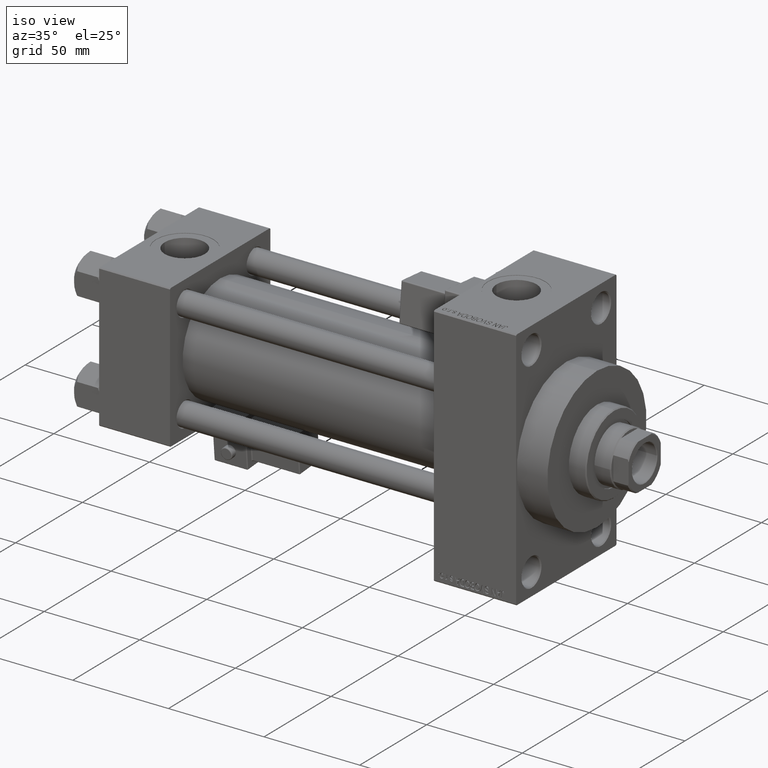
[diagram: clean part render]
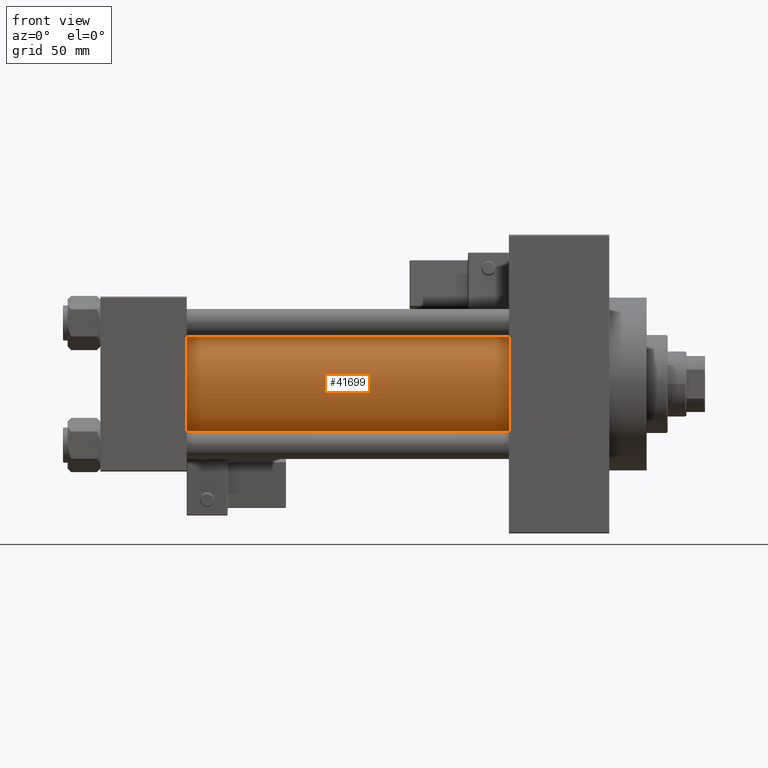
[diagram: tour spotlight — one face highlighted and labeled with its STEP entity id]
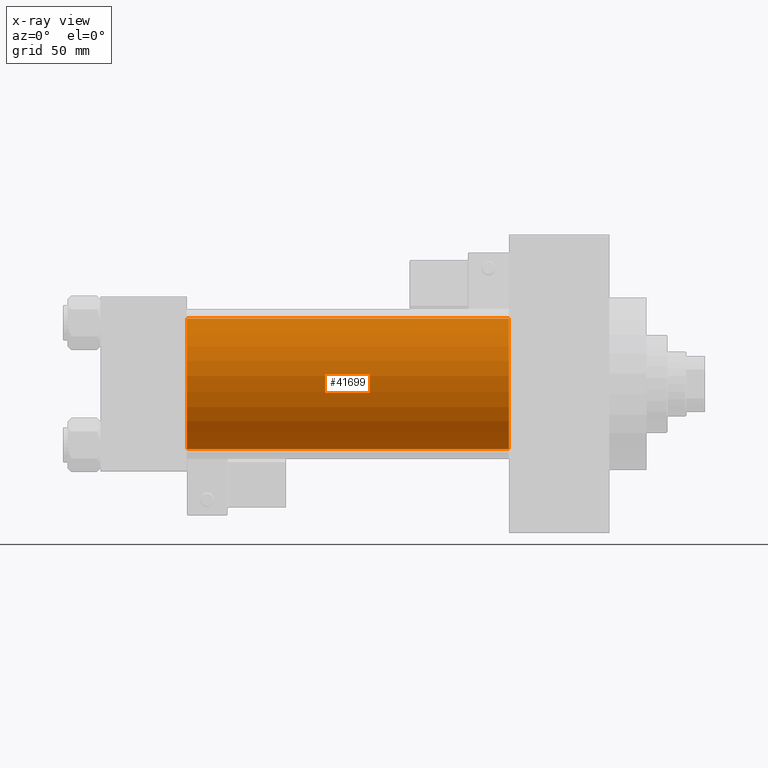
[diagram: x-ray of the same camera — body ghosted, this tour face saturated]
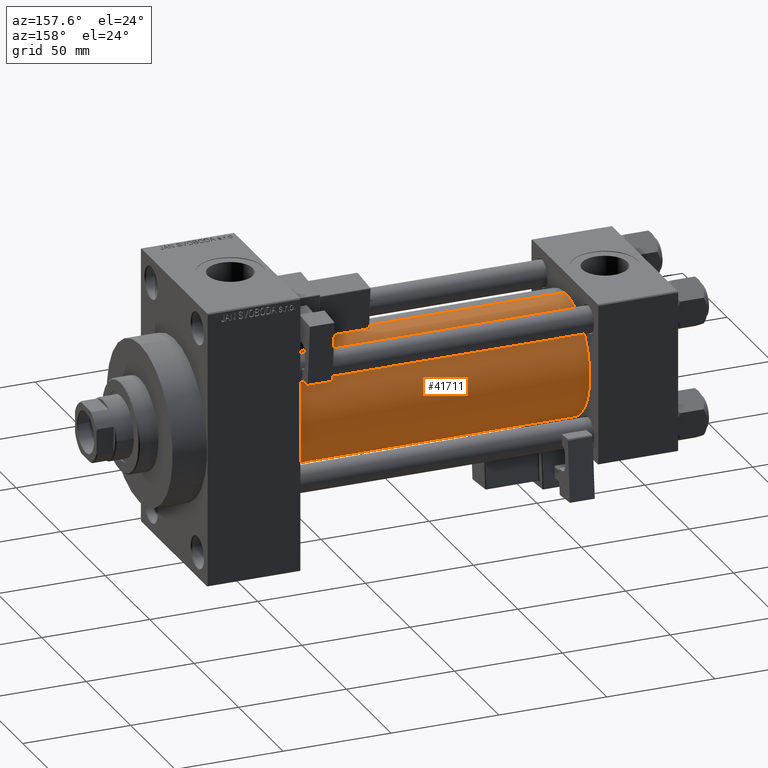
[diagram: tour spotlight — one face highlighted and labeled with its STEP entity id]
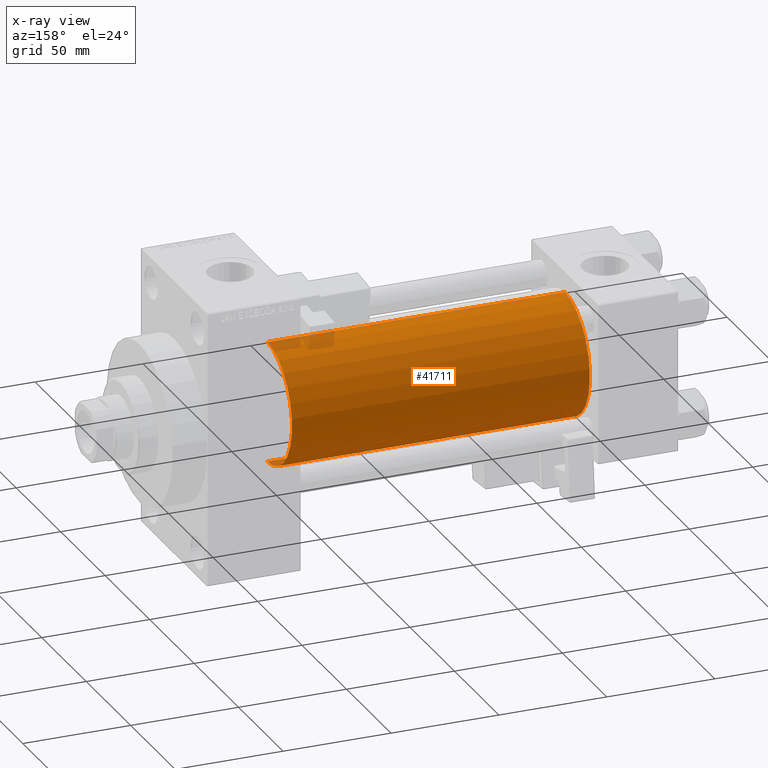
[diagram: x-ray of the same camera — body ghosted, this tour face saturated]
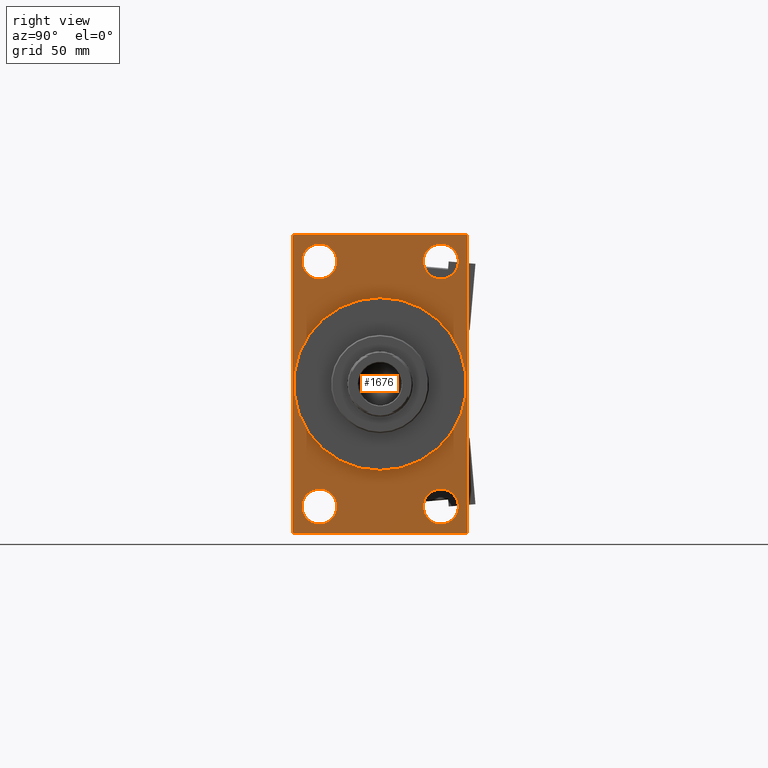
[diagram: tour spotlight — one face highlighted and labeled with its STEP entity id]
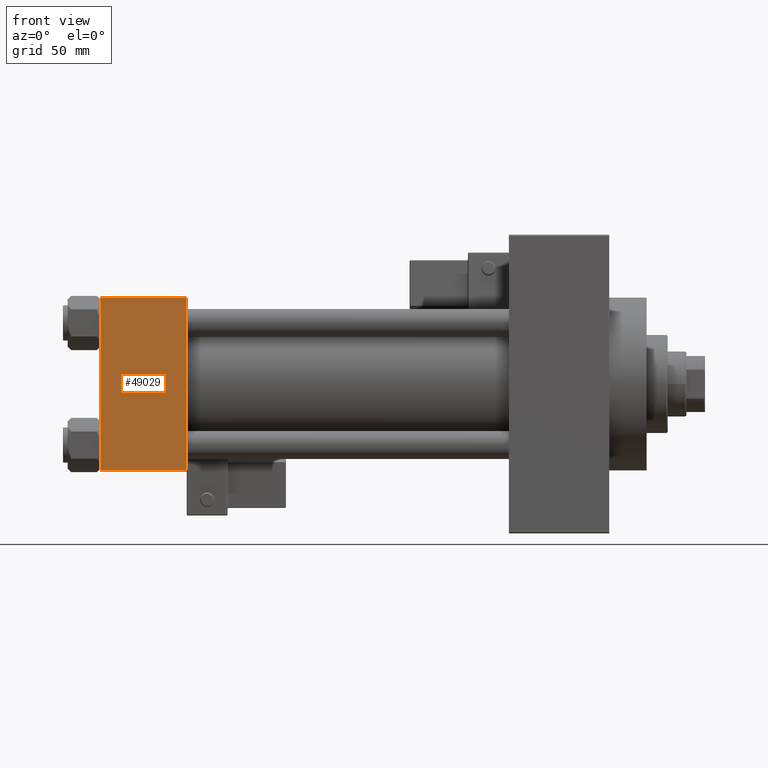
[diagram: tour spotlight — one face highlighted and labeled with its STEP entity id]
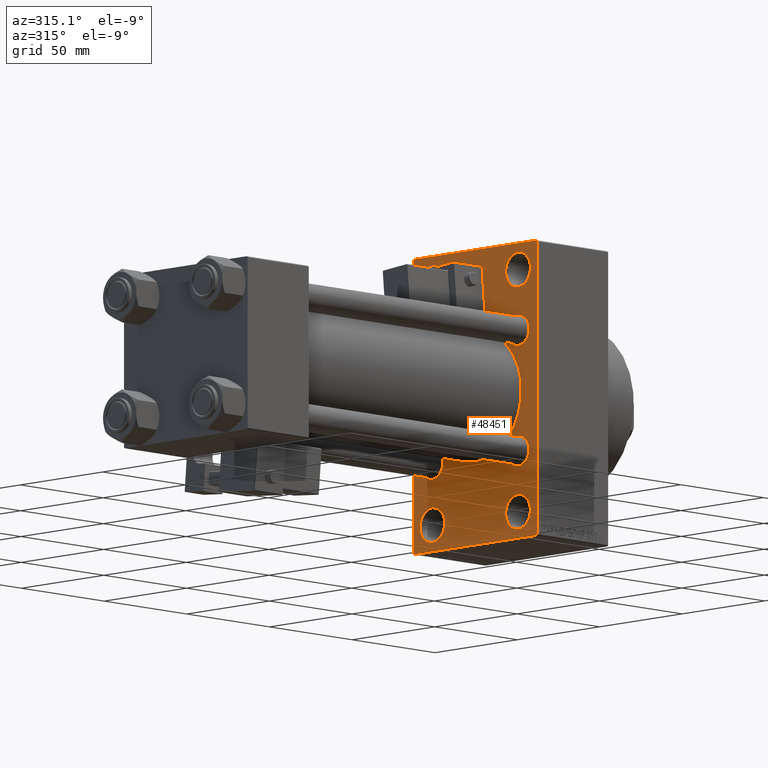
[diagram: tour spotlight — one face highlighted and labeled with its STEP entity id]
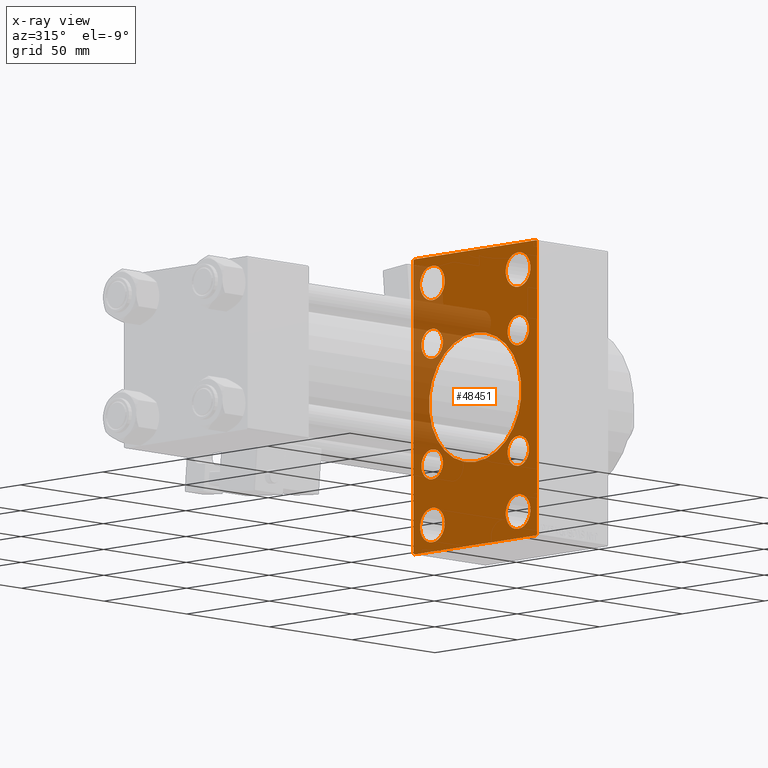
[diagram: x-ray of the same camera — body ghosted, this tour face saturated]
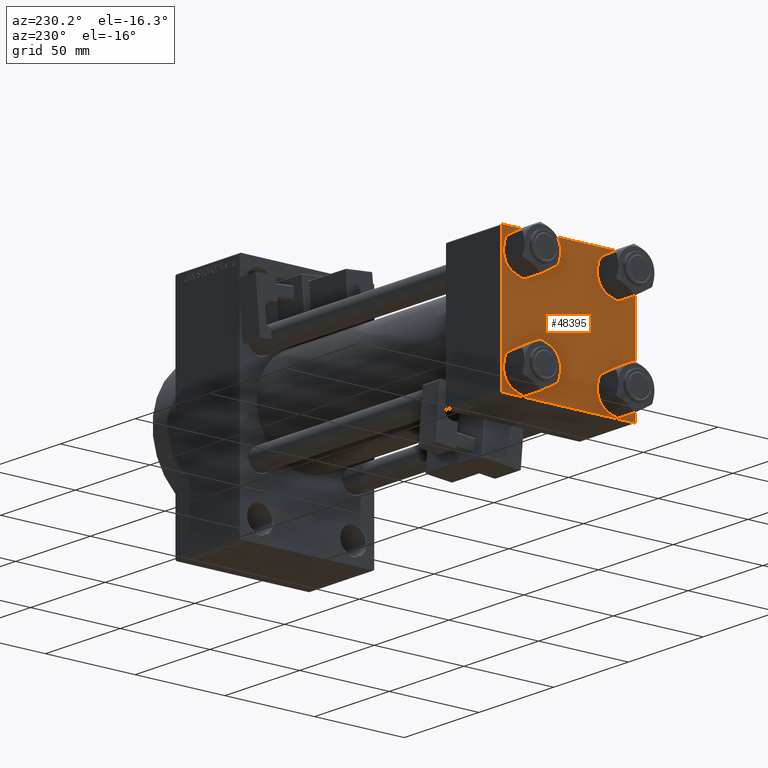
[diagram: tour spotlight — one face highlighted and labeled with its STEP entity id]
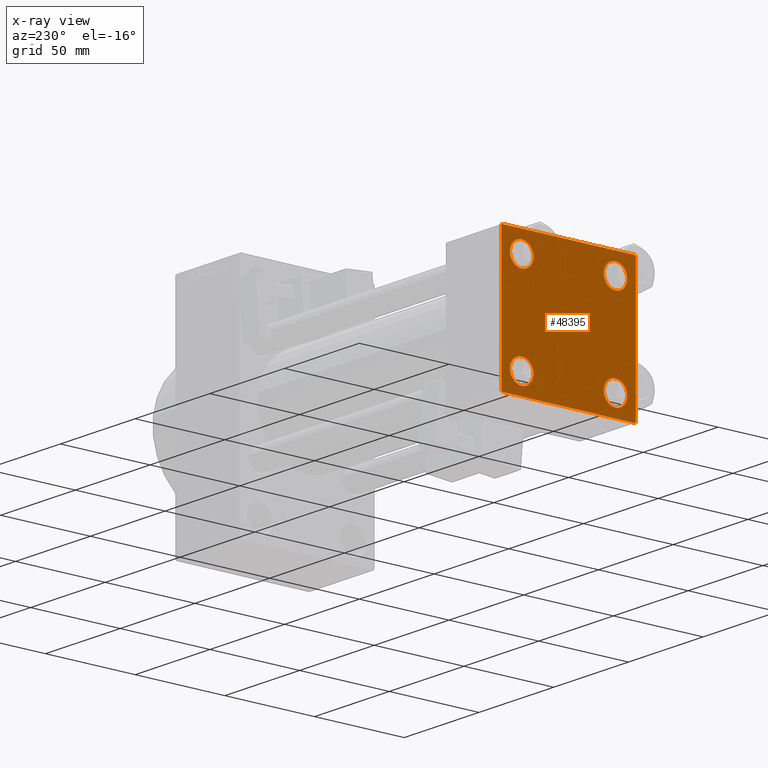
[diagram: x-ray of the same camera — body ghosted, this tour face saturated]
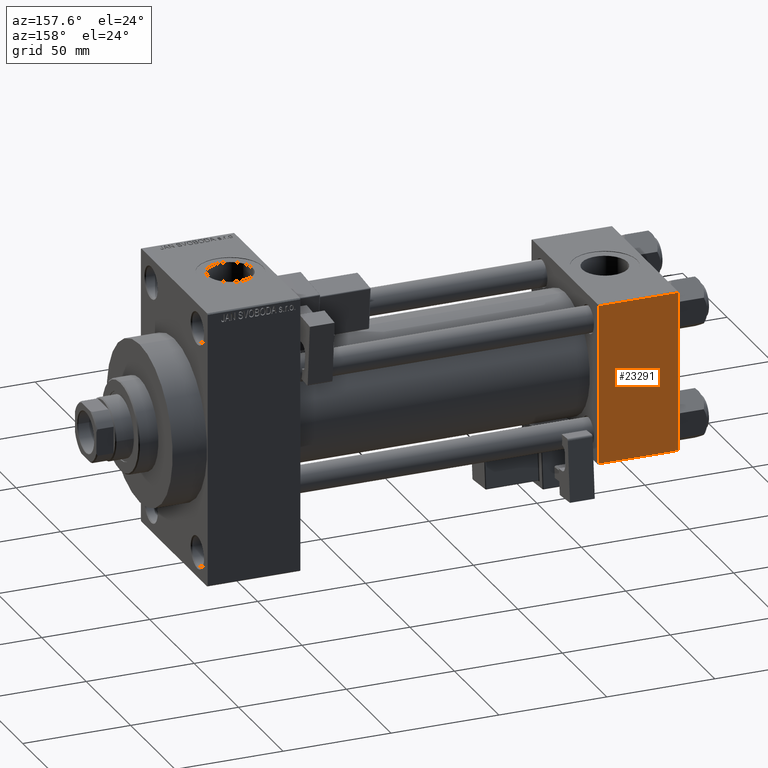
[diagram: tour spotlight — one face highlighted and labeled with its STEP entity id]
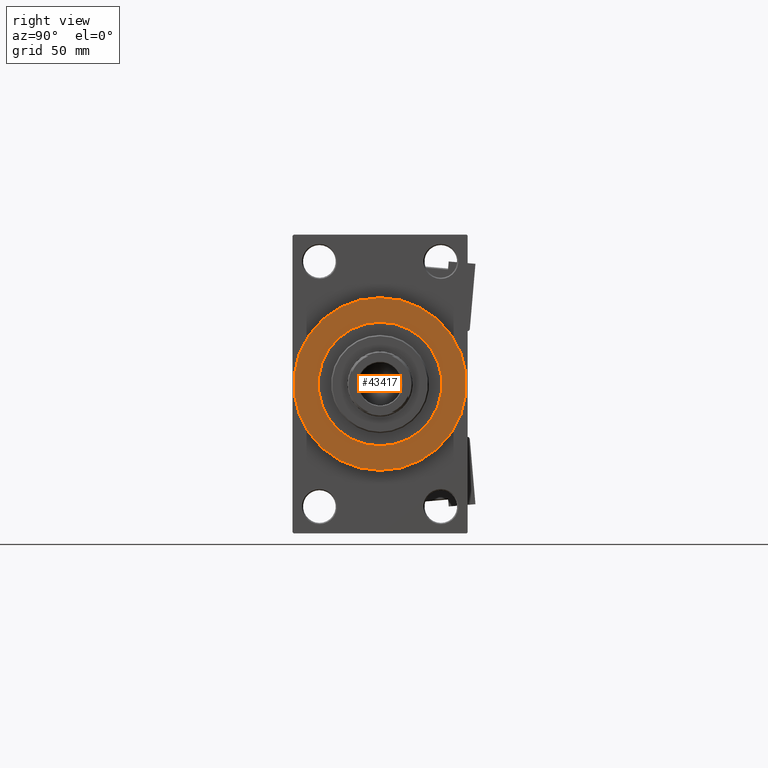
[diagram: tour spotlight — one face highlighted and labeled with its STEP entity id]
A machine part: a face-by-face anatomy tour. The part has 1257 B-rep faces; the first image is the clean iso view, then the 8 largest visible faces are spotlighted one at a time (largest first), each with its STEP entity span.

Face 1 — front view, entity #41699. An x-ray twin of the same camera follows (body ghosted, this face saturated) — the face is partly hidden behind the body. In plain terms, the highlighted cylindrical surface (partial cylindrical patch) has radius 28 mm, axis along (-1, -0, -0).
Definition (entity closure, byte-faithful):
#377 = CYLINDRICAL_SURFACE ( 'NONE', #16365, 28.00000000000000000 ) ;
#494 = CARTESIAN_POINT ( 'NONE',  ( 37.00000000000000711, 8.269258236473784371E-16, -28.00000000000000000 ) ) ;
#3651 = EDGE_LOOP ( 'NONE', ( #24492, #36231, #6724, #20378 ) ) ;
#5227 = CIRCLE ( 'NONE', #36370, 28.00000000000000000 ) ;
#6724 = ORIENTED_EDGE ( 'NONE', *, *, #43719, .T. ) ;
#7078 = CARTESIAN_POINT ( 'NONE',  ( 175.0000000000000284, -2.602085213965210642E-15, 28.00000000000000000 ) ) ;
#7517 = VERTEX_POINT ( 'NONE', #26586 ) ;
#13390 = VECTOR ( 'NONE', #14002, 1000.000000000000000 ) ;
#14002 = DIRECTION ( 'NONE',  ( -1.000000000000000000, -0.000000000000000000, -0.000000000000000000 ) ) ;
#15370 = DIRECTION ( 'NONE',  ( -1.000000000000000000, -0.000000000000000000, -0.000000000000000000 ) ) ;
#15484 = AXIS2_PLACEMENT_3D ( 'NONE', #17609, #31696, #46911 ) ;
#15666 = LINE ( 'NONE', #17756, #13390 ) ;
#16114 = FACE_OUTER_BOUND ( 'NONE', #3651, .T. ) ;
#16365 = AXIS2_PLACEMENT_3D ( 'NONE', #34383, #15370, #46577 ) ;
#16901 = CARTESIAN_POINT ( 'NONE',  ( 37.00000000000000711, -2.602085213965210642E-15, 28.00000000000000000 ) ) ;
#17609 = CARTESIAN_POINT ( 'NONE',  ( 37.00000000000000711, -2.602085213965210642E-15, 0.000000000000000000 ) ) ;
#17756 = CARTESIAN_POINT ( 'NONE',  ( 175.0000000000000284, 8.269258236473784371E-16, -28.00000000000000000 ) ) ;
#18145 = CARTESIAN_POINT ( 'NONE',  ( 175.0000000000000284, 8.269258236473784371E-16, -28.00000000000000000 ) ) ;
#20378 = ORIENTED_EDGE ( 'NONE', *, *, #26082, .T. ) ;
#22556 = DIRECTION ( 'NONE',  ( 0.000000000000000000, 0.000000000000000000, -1.000000000000000000 ) ) ;
#24492 = ORIENTED_EDGE ( 'NONE', *, *, #48394, .F. ) ;
#26082 = EDGE_CURVE ( 'NONE', #38632, #41334, #45790, .T. ) ;
#26586 = CARTESIAN_POINT ( 'NONE',  ( 175.0000000000000284, -2.602085213965210642E-15, 28.00000000000000000 ) ) ;
#31696 = DIRECTION ( 'NONE',  ( 1.000000000000000000, -0.000000000000000000, 0.000000000000000000 ) ) ;
#34383 = CARTESIAN_POINT ( 'NONE',  ( 175.0000000000000284, -2.602085213965210642E-15, 0.000000000000000000 ) ) ;
#34479 = VERTEX_POINT ( 'NONE', #18145 ) ;
#36231 = ORIENTED_EDGE ( 'NONE', *, *, #43829, .F. ) ;
#36370 = AXIS2_PLACEMENT_3D ( 'NONE', #38544, #49048, #22556 ) ;
#37085 = LINE ( 'NONE', #7078, #47515 ) ;
#38544 = CARTESIAN_POINT ( 'NONE',  ( 175.0000000000000284, -2.602085213965210642E-15, 0.000000000000000000 ) ) ;
#38632 = VERTEX_POINT ( 'NONE', #16901 ) ;
#41334 = VERTEX_POINT ( 'NONE', #494 ) ;
#41699 = ADVANCED_FACE ( 'NONE', ( #16114 ), #377, .T. ) ;
#43719 = EDGE_CURVE ( 'NONE', #7517, #38632, #37085, .T. ) ;
#43829 = EDGE_CURVE ( 'NONE', #7517, #34479, #5227, .T. ) ;
#45790 = CIRCLE ( 'NONE', #15484, 28.00000000000000000 ) ;
#46577 = DIRECTION ( 'NONE',  ( 0.000000000000000000, 0.000000000000000000, 1.000000000000000000 ) ) ;
#46911 = DIRECTION ( 'NONE',  ( 0.000000000000000000, 0.000000000000000000, 1.000000000000000000 ) ) ;
#47515 = VECTOR ( 'NONE', #48807, 1000.000000000000000 ) ;
#48394 = EDGE_CURVE ( 'NONE', #34479, #41334, #15666, .T. ) ;
#48807 = DIRECTION ( 'NONE',  ( -1.000000000000000000, -0.000000000000000000, -0.000000000000000000 ) ) ;
#49048 = DIRECTION ( 'NONE',  ( 1.000000000000000000, 0.000000000000000000, 0.000000000000000000 ) ) ;

Face 2 — auxiliary view, entity #41711. An x-ray twin of the same camera follows (body ghosted, this face saturated) — the face is partly hidden behind the body. In plain terms, the highlighted cylindrical surface (partial cylindrical patch) has radius 28 mm, axis along (-1, -0, -0).
Definition (entity closure, byte-faithful):
#442 = EDGE_CURVE ( 'NONE', #34479, #7517, #10902, .T. ) ;
#494 = CARTESIAN_POINT ( 'NONE',  ( 37.00000000000000711, 8.269258236473784371E-16, -28.00000000000000000 ) ) ;
#924 = DIRECTION ( 'NONE',  ( 1.000000000000000000, -0.000000000000000000, 0.000000000000000000 ) ) ;
#4131 = CARTESIAN_POINT ( 'NONE',  ( 175.0000000000000284, -2.602085213965210642E-15, 0.000000000000000000 ) ) ;
#4186 = CARTESIAN_POINT ( 'NONE',  ( 37.00000000000000711, -2.602085213965210642E-15, 0.000000000000000000 ) ) ;
#5196 = ORIENTED_EDGE ( 'NONE', *, *, #43719, .F. ) ;
#7078 = CARTESIAN_POINT ( 'NONE',  ( 175.0000000000000284, -2.602085213965210642E-15, 28.00000000000000000 ) ) ;
#7517 = VERTEX_POINT ( 'NONE', #26586 ) ;
#7950 = CARTESIAN_POINT ( 'NONE',  ( 175.0000000000000284, -2.602085213965210642E-15, 0.000000000000000000 ) ) ;
#8403 = AXIS2_PLACEMENT_3D ( 'NONE', #4186, #924, #45428 ) ;
#10902 = CIRCLE ( 'NONE', #33274, 28.00000000000000000 ) ;
#13390 = VECTOR ( 'NONE', #14002, 1000.000000000000000 ) ;
#13679 = ORIENTED_EDGE ( 'NONE', *, *, #28443, .T. ) ;
#14002 = DIRECTION ( 'NONE',  ( -1.000000000000000000, -0.000000000000000000, -0.000000000000000000 ) ) ;
#14247 = ORIENTED_EDGE ( 'NONE', *, *, #48394, .T. ) ;
#15666 = LINE ( 'NONE', #17756, #13390 ) ;
#15869 = FACE_OUTER_BOUND ( 'NONE', #39617, .T. ) ;
#16901 = CARTESIAN_POINT ( 'NONE',  ( 37.00000000000000711, -2.602085213965210642E-15, 28.00000000000000000 ) ) ;
#17756 = CARTESIAN_POINT ( 'NONE',  ( 175.0000000000000284, 8.269258236473784371E-16, -28.00000000000000000 ) ) ;
#18145 = CARTESIAN_POINT ( 'NONE',  ( 175.0000000000000284, 8.269258236473784371E-16, -28.00000000000000000 ) ) ;
#23520 = AXIS2_PLACEMENT_3D ( 'NONE', #4131, #34622, #42594 ) ;
#26586 = CARTESIAN_POINT ( 'NONE',  ( 175.0000000000000284, -2.602085213965210642E-15, 28.00000000000000000 ) ) ;
#28443 = EDGE_CURVE ( 'NONE', #41334, #38632, #30771, .T. ) ;
#30771 = CIRCLE ( 'NONE', #8403, 28.00000000000000000 ) ;
#33274 = AXIS2_PLACEMENT_3D ( 'NONE', #7950, #34968, #34718 ) ;
#34479 = VERTEX_POINT ( 'NONE', #18145 ) ;
#34622 = DIRECTION ( 'NONE',  ( -1.000000000000000000, -0.000000000000000000, -0.000000000000000000 ) ) ;
#34718 = DIRECTION ( 'NONE',  ( 0.000000000000000000, 0.000000000000000000, -1.000000000000000000 ) ) ;
#34968 = DIRECTION ( 'NONE',  ( 1.000000000000000000, 0.000000000000000000, 0.000000000000000000 ) ) ;
#37085 = LINE ( 'NONE', #7078, #47515 ) ;
#38371 = CYLINDRICAL_SURFACE ( 'NONE', #23520, 28.00000000000000000 ) ;
#38632 = VERTEX_POINT ( 'NONE', #16901 ) ;
#39617 = EDGE_LOOP ( 'NONE', ( #45323, #14247, #13679, #5196 ) ) ;
#41334 = VERTEX_POINT ( 'NONE', #494 ) ;
#41711 = ADVANCED_FACE ( 'NONE', ( #15869 ), #38371, .T. ) ;
#42594 = DIRECTION ( 'NONE',  ( 0.000000000000000000, 0.000000000000000000, 1.000000000000000000 ) ) ;
#43719 = EDGE_CURVE ( 'NONE', #7517, #38632, #37085, .T. ) ;
#45323 = ORIENTED_EDGE ( 'NONE', *, *, #442, .F. ) ;
#45428 = DIRECTION ( 'NONE',  ( 0.000000000000000000, 0.000000000000000000, 1.000000000000000000 ) ) ;
#47515 = VECTOR ( 'NONE', #48807, 1000.000000000000000 ) ;
#48394 = EDGE_CURVE ( 'NONE', #34479, #41334, #15666, .T. ) ;
#48807 = DIRECTION ( 'NONE',  ( -1.000000000000000000, -0.000000000000000000, -0.000000000000000000 ) ) ;

Face 3 — right view, entity #1676. In plain terms, the highlighted planar face has unit normal (-1, 0, 0).
Definition (entity closure, byte-faithful):
#156 = DIRECTION ( 'NONE',  ( 0.000000000000000000, 0.7071067811865771047, -0.7071067811865180408 ) ) ;
#214 = ORIENTED_EDGE ( 'NONE', *, *, #35282, .T. ) ;
#334 = DIRECTION ( 'NONE',  ( 0.000000000000000000, -1.000000000000000000, -1.850371707708594563E-16 ) ) ;
#644 = EDGE_CURVE ( 'NONE', #43339, #34786, #29185, .T. ) ;
#697 = EDGE_CURVE ( 'NONE', #27893, #40113, #34846, .T. ) ;
#703 = ORIENTED_EDGE ( 'NONE', *, *, #20586, .T. ) ;
#712 = CARTESIAN_POINT ( 'NONE',  ( 218.0000000000000284, -25.99999999999999645, 52.50000000000000000 ) ) ;
#1558 = CARTESIAN_POINT ( 'NONE',  ( 218.0000000000000284, 4.531193156845206793E-15, -37.00000000000000000 ) ) ;
#1676 = ADVANCED_FACE ( 'NONE', ( #25125, #6124, #41107, #18127, #3122, #22110 ), #9615, .F. ) ;
#1802 = ORIENTED_EDGE ( 'NONE', *, *, #5026, .T. ) ;
#2175 = DIRECTION ( 'NONE',  ( 0.000000000000000000, -1.000000000000000000, -1.850371707708594563E-16 ) ) ;
#2291 = CARTESIAN_POINT ( 'NONE',  ( 218.0000000000000284, -37.49999999999999289, 63.49999999999991473 ) ) ;
#2347 = CARTESIAN_POINT ( 'NONE',  ( 218.0000000000000284, 37.49999999999999289, -63.49999999999995737 ) ) ;
#2422 = EDGE_LOOP ( 'NONE', ( #42012, #41277 ) ) ;
#3122 = FACE_BOUND ( 'NONE', #43166, .T. ) ;
#3328 = CARTESIAN_POINT ( 'NONE',  ( 218.0000000000000284, -36.99999999999992895, 63.99999999999997158 ) ) ;
#3638 = CARTESIAN_POINT ( 'NONE',  ( 218.0000000000000284, 26.00000000000000000, -59.99999999999997158 ) ) ;
#3718 = EDGE_CURVE ( 'NONE', #8637, #7647, #13428, .T. ) ;
#4251 = CARTESIAN_POINT ( 'NONE',  ( 218.0000000000000284, 26.00000000000000000, 59.99999999999997158 ) ) ;
#4495 = DIRECTION ( 'NONE',  ( 0.000000000000000000, 0.000000000000000000, 1.000000000000000000 ) ) ;
#5026 = EDGE_CURVE ( 'NONE', #43339, #49246, #40593, .T. ) ;
#5222 = CARTESIAN_POINT ( 'NONE',  ( 218.0000000000000284, 26.00000000000000000, 45.00000000000001421 ) ) ;
#5272 = CARTESIAN_POINT ( 'NONE',  ( 218.0000000000000284, 37.49999999999999289, -63.49999999999995737 ) ) ;
#5312 = VERTEX_POINT ( 'NONE', #2291 ) ;
#5457 = DIRECTION ( 'NONE',  ( 0.000000000000000000, 0.000000000000000000, 1.000000000000000000 ) ) ;
#5875 = LINE ( 'NONE', #48096, #20360 ) ;
#6124 = FACE_BOUND ( 'NONE', #25531, .T. ) ;
#6352 = DIRECTION ( 'NONE',  ( -0.000000000000000000, 0.7071067811865181518, 0.7071067811865769936 ) ) ;
#6451 = EDGE_CURVE ( 'NONE', #5312, #35208, #30081, .T. ) ;
#6538 = VERTEX_POINT ( 'NONE', #3328 ) ;
#6616 = EDGE_CURVE ( 'NONE', #7647, #8637, #35735, .T. ) ;
#6906 = DIRECTION ( 'NONE',  ( 0.000000000000000000, 0.000000000000000000, 1.000000000000000000 ) ) ;
#7419 = CARTESIAN_POINT ( 'NONE',  ( 218.0000000000000284, 36.99999999999997158, 63.99999999999998579 ) ) ;
#7636 = CARTESIAN_POINT ( 'NONE',  ( 218.0000000000000284, -36.99999999999996447, -64.00000000000001421 ) ) ;
#7647 = VERTEX_POINT ( 'NONE', #16560 ) ;
#7748 = CARTESIAN_POINT ( 'NONE',  ( 218.0000000000000284, -37.49999999999999289, -63.50000000000002842 ) ) ;
#8185 = EDGE_CURVE ( 'NONE', #9293, #46011, #11856, .T. ) ;
#8227 = CARTESIAN_POINT ( 'NONE',  ( 218.0000000000000284, 26.00000000000000000, -52.49999999999999289 ) ) ;
#8432 = AXIS2_PLACEMENT_3D ( 'NONE', #35669, #24903, #13153 ) ;
#8637 = VERTEX_POINT ( 'NONE', #1558 ) ;
#8911 = AXIS2_PLACEMENT_3D ( 'NONE', #25665, #13663, #36913 ) ;
#9189 = ORIENTED_EDGE ( 'NONE', *, *, #42773, .F. ) ;
#9211 = CIRCLE ( 'NONE', #8432, 7.499999999999978684 ) ;
#9293 = VERTEX_POINT ( 'NONE', #48780 ) ;
#9309 = VECTOR ( 'NONE', #2175, 1000.000000000000000 ) ;
#9346 = AXIS2_PLACEMENT_3D ( 'NONE', #18377, #13625, #14124 ) ;
#9615 = PLANE ( 'NONE',  #9346 ) ;
#9876 = DIRECTION ( 'NONE',  ( 0.000000000000000000, -5.421010862427522170E-17, -1.000000000000000000 ) ) ;
#9920 = DIRECTION ( 'NONE',  ( 0.000000000000000000, 0.000000000000000000, 1.000000000000000000 ) ) ;
#10201 = DIRECTION ( 'NONE',  ( 0.000000000000000000, 0.000000000000000000, -1.000000000000000000 ) ) ;
#10246 = AXIS2_PLACEMENT_3D ( 'NONE', #712, #31208, #42439 ) ;
#10280 = DIRECTION ( 'NONE',  ( 0.000000000000000000, 0.000000000000000000, -1.000000000000000000 ) ) ;
#11856 = CIRCLE ( 'NONE', #10246, 7.500000000000062172 ) ;
#12089 = CIRCLE ( 'NONE', #8911, 7.499999999999978684 ) ;
#12725 = CARTESIAN_POINT ( 'NONE',  ( 218.0000000000000284, -25.99999999999999645, -52.49999999999999289 ) ) ;
#13153 = DIRECTION ( 'NONE',  ( 0.000000000000000000, 0.000000000000000000, 1.000000000000000000 ) ) ;
#13346 = VECTOR ( 'NONE', #14822, 1000.000000000000000 ) ;
#13419 = CIRCLE ( 'NONE', #46129, 7.499999999999978684 ) ;
#13428 = CIRCLE ( 'NONE', #31001, 37.00000000000000000 ) ;
#13625 = DIRECTION ( 'NONE',  ( -1.000000000000000000, 0.000000000000000000, -0.000000000000000000 ) ) ;
#13663 = DIRECTION ( 'NONE',  ( -1.000000000000000000, 0.000000000000000000, -0.000000000000000000 ) ) ;
#13923 = DIRECTION ( 'NONE',  ( -1.000000000000000000, 0.000000000000000000, -0.000000000000000000 ) ) ;
#14124 = DIRECTION ( 'NONE',  ( -0.000000000000000000, 0.000000000000000000, 1.000000000000000000 ) ) ;
#14511 = CARTESIAN_POINT ( 'NONE',  ( 218.0000000000000284, -25.99999999999999645, -45.00000000000001421 ) ) ;
#14709 = EDGE_LOOP ( 'NONE', ( #214, #42943 ) ) ;
#14822 = DIRECTION ( 'NONE',  ( 0.000000000000000000, 0.000000000000000000, -1.000000000000000000 ) ) ;
#14850 = EDGE_LOOP ( 'NONE', ( #33355, #32858, #43286, #1802, #9189, #29177, #19403, #48289 ) ) ;
#14856 = CARTESIAN_POINT ( 'NONE',  ( 218.0000000000000284, 26.00000000000000000, 52.49999999999999289 ) ) ;
#14965 = VECTOR ( 'NONE', #334, 1000.000000000000000 ) ;
#15446 = VECTOR ( 'NONE', #15801, 1000.000000000000000 ) ;
#15801 = DIRECTION ( 'NONE',  ( -0.000000000000000000, -0.7071067811865524577, -0.7071067811865426878 ) ) ;
#16093 = CIRCLE ( 'NONE', #22475, 7.500000000000062172 ) ;
#16560 = CARTESIAN_POINT ( 'NONE',  ( 218.0000000000000284, 0.000000000000000000, 37.00000000000000000 ) ) ;
#17286 = CARTESIAN_POINT ( 'NONE',  ( 218.0000000000000284, 0.000000000000000000, 0.000000000000000000 ) ) ;
#17302 = VERTEX_POINT ( 'NONE', #7419 ) ;
#17903 = CIRCLE ( 'NONE', #36264, 7.499999999999978684 ) ;
#18127 = FACE_BOUND ( 'NONE', #2422, .T. ) ;
#18253 = EDGE_CURVE ( 'NONE', #41352, #46788, #24014, .T. ) ;
#18377 = CARTESIAN_POINT ( 'NONE',  ( 218.0000000000000284, 0.000000000000000000, 0.000000000000000000 ) ) ;
#19334 = CARTESIAN_POINT ( 'NONE',  ( 218.0000000000000284, 37.50000000000000000, 63.99999999999998579 ) ) ;
#19403 = ORIENTED_EDGE ( 'NONE', *, *, #47769, .T. ) ;
#19517 = ORIENTED_EDGE ( 'NONE', *, *, #6616, .F. ) ;
#20267 = CARTESIAN_POINT ( 'NONE',  ( 218.0000000000000284, -25.99999999999999645, -59.99999999999997158 ) ) ;
#20360 = VECTOR ( 'NONE', #21126, 1000.000000000000000 ) ;
#20586 = EDGE_CURVE ( 'NONE', #46011, #9293, #16093, .T. ) ;
#20609 = EDGE_CURVE ( 'NONE', #46788, #41352, #12089, .T. ) ;
#20792 = AXIS2_PLACEMENT_3D ( 'NONE', #14856, #40863, #22352 ) ;
#21126 = DIRECTION ( 'NONE',  ( 0.000000000000000000, -0.7071067811865672237, 0.7071067811865279218 ) ) ;
#21672 = CARTESIAN_POINT ( 'NONE',  ( 218.0000000000000284, -25.99999999999999645, -52.49999999999999289 ) ) ;
#22093 = ORIENTED_EDGE ( 'NONE', *, *, #8185, .T. ) ;
#22110 = FACE_OUTER_BOUND ( 'NONE', #14850, .T. ) ;
#22352 = DIRECTION ( 'NONE',  ( 0.000000000000000000, 0.000000000000000000, 1.000000000000000000 ) ) ;
#22475 = AXIS2_PLACEMENT_3D ( 'NONE', #44647, #41147, #6906 ) ;
#23707 = VECTOR ( 'NONE', #6352, 1000.000000000000000 ) ;
#24014 = CIRCLE ( 'NONE', #20792, 7.499999999999978684 ) ;
#24502 = EDGE_CURVE ( 'NONE', #6538, #5312, #30570, .T. ) ;
#24672 = VERTEX_POINT ( 'NONE', #27553 ) ;
#24903 = DIRECTION ( 'NONE',  ( -1.000000000000000000, 0.000000000000000000, -0.000000000000000000 ) ) ;
#25125 = FACE_BOUND ( 'NONE', #28674, .T. ) ;
#25531 = EDGE_LOOP ( 'NONE', ( #33656, #33782 ) ) ;
#25643 = LINE ( 'NONE', #48856, #25966 ) ;
#25665 = CARTESIAN_POINT ( 'NONE',  ( 218.0000000000000284, 26.00000000000000000, 52.49999999999999289 ) ) ;
#25966 = VECTOR ( 'NONE', #9876, 1000.000000000000000 ) ;
#26650 = LINE ( 'NONE', #7636, #45963 ) ;
#27553 = CARTESIAN_POINT ( 'NONE',  ( 218.0000000000000284, 26.00000000000000000, -45.00000000000001421 ) ) ;
#27893 = VERTEX_POINT ( 'NONE', #14511 ) ;
#28561 = AXIS2_PLACEMENT_3D ( 'NONE', #17286, #32044, #10280 ) ;
#28674 = EDGE_LOOP ( 'NONE', ( #703, #22093 ) ) ;
#28707 = DIRECTION ( 'NONE',  ( -1.000000000000000000, 0.000000000000000000, -0.000000000000000000 ) ) ;
#29177 = ORIENTED_EDGE ( 'NONE', *, *, #31899, .T. ) ;
#29185 = LINE ( 'NONE', #44409, #9309 ) ;
#29214 = CARTESIAN_POINT ( 'NONE',  ( 218.0000000000000284, 0.000000000000000000, 0.000000000000000000 ) ) ;
#30081 = LINE ( 'NONE', #48810, #13346 ) ;
#30570 = LINE ( 'NONE', #45784, #15446 ) ;
#30894 = AXIS2_PLACEMENT_3D ( 'NONE', #21672, #13923, #9920 ) ;
#31001 = AXIS2_PLACEMENT_3D ( 'NONE', #29214, #44438, #10201 ) ;
#31208 = DIRECTION ( 'NONE',  ( -1.000000000000000000, 0.000000000000000000, -0.000000000000000000 ) ) ;
#31899 = EDGE_CURVE ( 'NONE', #42558, #17302, #5875, .T. ) ;
#32044 = DIRECTION ( 'NONE',  ( 1.000000000000000000, 0.000000000000000000, 0.000000000000000000 ) ) ;
#32388 = CARTESIAN_POINT ( 'NONE',  ( 218.0000000000000284, 37.50000000000000000, 63.49999999999998579 ) ) ;
#32858 = ORIENTED_EDGE ( 'NONE', *, *, #44464, .T. ) ;
#33355 = ORIENTED_EDGE ( 'NONE', *, *, #6451, .T. ) ;
#33656 = ORIENTED_EDGE ( 'NONE', *, *, #40360, .T. ) ;
#33782 = ORIENTED_EDGE ( 'NONE', *, *, #697, .T. ) ;
#34786 = VERTEX_POINT ( 'NONE', #35848 ) ;
#34846 = CIRCLE ( 'NONE', #30894, 7.499999999999978684 ) ;
#35208 = VERTEX_POINT ( 'NONE', #7748 ) ;
#35282 = EDGE_CURVE ( 'NONE', #45520, #24672, #13419, .T. ) ;
#35669 = CARTESIAN_POINT ( 'NONE',  ( 218.0000000000000284, 26.00000000000000000, -52.49999999999999289 ) ) ;
#35735 = CIRCLE ( 'NONE', #28561, 37.00000000000000000 ) ;
#35848 = CARTESIAN_POINT ( 'NONE',  ( 218.0000000000000284, -36.99999999999996447, -64.00000000000001421 ) ) ;
#36264 = AXIS2_PLACEMENT_3D ( 'NONE', #12725, #28707, #5457 ) ;
#36913 = DIRECTION ( 'NONE',  ( 0.000000000000000000, 0.000000000000000000, 1.000000000000000000 ) ) ;
#38732 = DIRECTION ( 'NONE',  ( -1.000000000000000000, 0.000000000000000000, -0.000000000000000000 ) ) ;
#39302 = LINE ( 'NONE', #19334, #14965 ) ;
#40113 = VERTEX_POINT ( 'NONE', #20267 ) ;
#40360 = EDGE_CURVE ( 'NONE', #40113, #27893, #17903, .T. ) ;
#40593 = LINE ( 'NONE', #2347, #23707 ) ;
#40863 = DIRECTION ( 'NONE',  ( -1.000000000000000000, 0.000000000000000000, -0.000000000000000000 ) ) ;
#41107 = FACE_BOUND ( 'NONE', #14709, .T. ) ;
#41147 = DIRECTION ( 'NONE',  ( -1.000000000000000000, 0.000000000000000000, -0.000000000000000000 ) ) ;
#41277 = ORIENTED_EDGE ( 'NONE', *, *, #20609, .T. ) ;
#41352 = VERTEX_POINT ( 'NONE', #5222 ) ;
#41452 = ORIENTED_EDGE ( 'NONE', *, *, #3718, .F. ) ;
#42003 = CARTESIAN_POINT ( 'NONE',  ( 218.0000000000000284, -25.99999999999999645, 44.99999999999993605 ) ) ;
#42012 = ORIENTED_EDGE ( 'NONE', *, *, #18253, .T. ) ;
#42439 = DIRECTION ( 'NONE',  ( 0.000000000000000000, 0.000000000000000000, 1.000000000000000000 ) ) ;
#42558 = VERTEX_POINT ( 'NONE', #32388 ) ;
#42773 = EDGE_CURVE ( 'NONE', #42558, #49246, #25643, .T. ) ;
#42911 = CARTESIAN_POINT ( 'NONE',  ( 218.0000000000000284, 36.99999999999999289, -64.00000000000000000 ) ) ;
#42943 = ORIENTED_EDGE ( 'NONE', *, *, #43480, .T. ) ;
#43166 = EDGE_LOOP ( 'NONE', ( #19517, #41452 ) ) ;
#43286 = ORIENTED_EDGE ( 'NONE', *, *, #644, .F. ) ;
#43339 = VERTEX_POINT ( 'NONE', #42911 ) ;
#43480 = EDGE_CURVE ( 'NONE', #24672, #45520, #9211, .T. ) ;
#44409 = CARTESIAN_POINT ( 'NONE',  ( 218.0000000000000284, 37.49999999999999289, -64.00000000000000000 ) ) ;
#44438 = DIRECTION ( 'NONE',  ( 1.000000000000000000, 0.000000000000000000, 0.000000000000000000 ) ) ;
#44464 = EDGE_CURVE ( 'NONE', #35208, #34786, #26650, .T. ) ;
#44647 = CARTESIAN_POINT ( 'NONE',  ( 218.0000000000000284, -25.99999999999999645, 52.50000000000000000 ) ) ;
#45520 = VERTEX_POINT ( 'NONE', #3638 ) ;
#45784 = CARTESIAN_POINT ( 'NONE',  ( 218.0000000000000284, -37.49999999999999289, 63.49999999999991473 ) ) ;
#45963 = VECTOR ( 'NONE', #156, 999.9999999999998863 ) ;
#46011 = VERTEX_POINT ( 'NONE', #42003 ) ;
#46129 = AXIS2_PLACEMENT_3D ( 'NONE', #8227, #38732, #4495 ) ;
#46788 = VERTEX_POINT ( 'NONE', #4251 ) ;
#47769 = EDGE_CURVE ( 'NONE', #17302, #6538, #39302, .T. ) ;
#48096 = CARTESIAN_POINT ( 'NONE',  ( 218.0000000000000284, 36.99999999999997158, 63.99999999999998579 ) ) ;
#48289 = ORIENTED_EDGE ( 'NONE', *, *, #24502, .T. ) ;
#48780 = CARTESIAN_POINT ( 'NONE',  ( 218.0000000000000284, -25.99999999999999645, 60.00000000000005684 ) ) ;
#48810 = CARTESIAN_POINT ( 'NONE',  ( 218.0000000000000284, -37.49999999999999289, 63.99999999999997158 ) ) ;
#48856 = CARTESIAN_POINT ( 'NONE',  ( 218.0000000000000284, 37.50000000000000000, 63.99999999999998579 ) ) ;
#49246 = VERTEX_POINT ( 'NONE', #5272 ) ;

Face 4 — front view, entity #49029. In plain terms, the highlighted planar face has unit normal (0, 1, 0).
Definition (entity closure, byte-faithful):
#77 = EDGE_CURVE ( 'NONE', #2112, #13977, #25456, .T. ) ;
#2112 = VERTEX_POINT ( 'NONE', #7054 ) ;
#2330 = CARTESIAN_POINT ( 'NONE',  ( 37.00000000000000000, -37.50000000000000000, -37.00000000000003553 ) ) ;
#2511 = CARTESIAN_POINT ( 'NONE',  ( 37.00000000000000000, -37.50000000000000711, 37.49999999999999289 ) ) ;
#2825 = LINE ( 'NONE', #2330, #4724 ) ;
#2988 = ORIENTED_EDGE ( 'NONE', *, *, #46254, .T. ) ;
#4724 = VECTOR ( 'NONE', #29331, 1000.000000000000000 ) ;
#5376 = CARTESIAN_POINT ( 'NONE',  ( 0.000000000000000000, -37.50000000000000000, -37.00000000000003553 ) ) ;
#5672 = VERTEX_POINT ( 'NONE', #36957 ) ;
#7054 = CARTESIAN_POINT ( 'NONE',  ( 0.000000000000000000, -37.50000000000000711, 36.99999999999999289 ) ) ;
#11291 = EDGE_CURVE ( 'NONE', #13977, #25100, #2825, .T. ) ;
#13977 = VERTEX_POINT ( 'NONE', #5376 ) ;
#15052 = DIRECTION ( 'NONE',  ( 0.000000000000000000, -9.251858538542971581E-17, 1.000000000000000000 ) ) ;
#18813 = FACE_OUTER_BOUND ( 'NONE', #28144, .T. ) ;
#21707 = DIRECTION ( 'NONE',  ( -1.000000000000000000, 0.000000000000000000, 0.000000000000000000 ) ) ;
#21893 = VECTOR ( 'NONE', #28770, 1000.000000000000000 ) ;
#22544 = PLANE ( 'NONE',  #36555 ) ;
#25100 = VERTEX_POINT ( 'NONE', #41138 ) ;
#25317 = VECTOR ( 'NONE', #21707, 1000.000000000000000 ) ;
#25456 = LINE ( 'NONE', #40448, #45993 ) ;
#28144 = EDGE_LOOP ( 'NONE', ( #46132, #30649, #43039, #2988 ) ) ;
#28770 = DIRECTION ( 'NONE',  ( 0.000000000000000000, 9.251858538542971581E-17, -1.000000000000000000 ) ) ;
#29220 = CARTESIAN_POINT ( 'NONE',  ( 37.00000000000000000, -37.50000000000000711, 36.99999999999999289 ) ) ;
#29331 = DIRECTION ( 'NONE',  ( 1.000000000000000000, 0.000000000000000000, 0.000000000000000000 ) ) ;
#30649 = ORIENTED_EDGE ( 'NONE', *, *, #11291, .T. ) ;
#36555 = AXIS2_PLACEMENT_3D ( 'NONE', #45774, #49033, #15052 ) ;
#36957 = CARTESIAN_POINT ( 'NONE',  ( 37.00000000000000000, -37.50000000000000711, 36.99999999999999289 ) ) ;
#40253 = LINE ( 'NONE', #2511, #21893 ) ;
#40448 = CARTESIAN_POINT ( 'NONE',  ( 0.000000000000000000, -37.50000000000000711, 37.49999999999999289 ) ) ;
#40966 = EDGE_CURVE ( 'NONE', #5672, #25100, #40253, .T. ) ;
#41138 = CARTESIAN_POINT ( 'NONE',  ( 37.00000000000000000, -37.50000000000000000, -37.00000000000003553 ) ) ;
#43039 = ORIENTED_EDGE ( 'NONE', *, *, #40966, .F. ) ;
#44184 = DIRECTION ( 'NONE',  ( 0.000000000000000000, 9.251858538542971581E-17, -1.000000000000000000 ) ) ;
#45774 = CARTESIAN_POINT ( 'NONE',  ( 37.00000000000000000, -37.50000000000000711, 37.49999999999999289 ) ) ;
#45993 = VECTOR ( 'NONE', #44184, 1000.000000000000000 ) ;
#46132 = ORIENTED_EDGE ( 'NONE', *, *, #77, .T. ) ;
#46254 = EDGE_CURVE ( 'NONE', #5672, #2112, #48431, .T. ) ;
#48431 = LINE ( 'NONE', #29220, #25317 ) ;
#49029 = ADVANCED_FACE ( 'NONE', ( #18813 ), #22544, .F. ) ;
#49033 = DIRECTION ( 'NONE',  ( -0.000000000000000000, 1.000000000000000000, 9.251858538542971581E-17 ) ) ;

Face 5 — auxiliary view, entity #48451. An x-ray twin of the same camera follows (body ghosted, this face saturated) — the face is partly hidden behind the body. In plain terms, the highlighted planar face has unit normal (-1, 0, 0).
Definition (entity closure, byte-faithful):
#442 = EDGE_CURVE ( 'NONE', #34479, #7517, #10902, .T. ) ;
#914 = EDGE_CURVE ( 'NONE', #31407, #6791, #28494, .T. ) ;
#1247 = EDGE_CURVE ( 'NONE', #18715, #6425, #17314, .T. ) ;
#1286 = CARTESIAN_POINT ( 'NONE',  ( 175.0000000000000284, 37.50000000000000000, 63.99999999999998579 ) ) ;
#1326 = AXIS2_PLACEMENT_3D ( 'NONE', #18121, #36620, #2614 ) ;
#1694 = EDGE_LOOP ( 'NONE', ( #47997, #16527 ) ) ;
#2033 = DIRECTION ( 'NONE',  ( 1.000000000000000000, -0.000000000000000000, 0.000000000000000000 ) ) ;
#2151 = CARTESIAN_POINT ( 'NONE',  ( 175.0000000000000284, 37.50000000000000000, 63.99999999999998579 ) ) ;
#2354 = CARTESIAN_POINT ( 'NONE',  ( 175.0000000000000284, 50.50000000000152767, -50.49999999999732836 ) ) ;
#2410 = CARTESIAN_POINT ( 'NONE',  ( 175.0000000000000284, -25.99999999999999645, 60.00000000000003553 ) ) ;
#2486 = EDGE_CURVE ( 'NONE', #31258, #13678, #34136, .T. ) ;
#2614 = DIRECTION ( 'NONE',  ( 0.000000000000000000, 0.000000000000000000, 1.000000000000000000 ) ) ;
#2634 = CARTESIAN_POINT ( 'NONE',  ( 175.0000000000000284, 26.14999999999999858, -32.65000000000001279 ) ) ;
#2841 = DIRECTION ( 'NONE',  ( 0.000000000000000000, 0.000000000000000000, 1.000000000000000000 ) ) ;
#2851 = EDGE_LOOP ( 'NONE', ( #39735, #27640 ) ) ;
#3135 = LINE ( 'NONE', #25140, #13154 ) ;
#3225 = VERTEX_POINT ( 'NONE', #25274 ) ;
#3407 = DIRECTION ( 'NONE',  ( 1.000000000000000000, -0.000000000000000000, 0.000000000000000000 ) ) ;
#3827 = VECTOR ( 'NONE', #25831, 1000.000000000000000 ) ;
#3903 = CARTESIAN_POINT ( 'NONE',  ( 175.0000000000000284, -37.49999999999999289, -63.50000000000002842 ) ) ;
#4301 = CIRCLE ( 'NONE', #46568, 6.500000000000008882 ) ;
#4418 = VECTOR ( 'NONE', #38543, 1000.000000000000000 ) ;
#4633 = VERTEX_POINT ( 'NONE', #23432 ) ;
#4878 = VERTEX_POINT ( 'NONE', #3903 ) ;
#5227 = CIRCLE ( 'NONE', #36370, 28.00000000000000000 ) ;
#5915 = ORIENTED_EDGE ( 'NONE', *, *, #12018, .F. ) ;
#6057 = DIRECTION ( 'NONE',  ( 0.000000000000000000, 0.000000000000000000, 1.000000000000000000 ) ) ;
#6425 = VERTEX_POINT ( 'NONE', #41808 ) ;
#6430 = VERTEX_POINT ( 'NONE', #18829 ) ;
#6681 = ORIENTED_EDGE ( 'NONE', *, *, #35042, .T. ) ;
#6791 = VERTEX_POINT ( 'NONE', #20422 ) ;
#6859 = VERTEX_POINT ( 'NONE', #2410 ) ;
#6928 = CARTESIAN_POINT ( 'NONE',  ( 175.0000000000000284, 26.00000000000000000, 52.49999999999999289 ) ) ;
#6951 = EDGE_CURVE ( 'NONE', #4633, #22230, #12610, .T. ) ;
#7158 = CARTESIAN_POINT ( 'NONE',  ( 175.0000000000000284, -26.14999999999999147, 26.15000000000000924 ) ) ;
#7245 = CARTESIAN_POINT ( 'NONE',  ( 175.0000000000000284, -25.99999999999999645, -52.49999999999999289 ) ) ;
#7268 = DIRECTION ( 'NONE',  ( 0.000000000000000000, 0.000000000000000000, 1.000000000000000000 ) ) ;
#7411 = AXIS2_PLACEMENT_3D ( 'NONE', #29404, #45366, #13892 ) ;
#7517 = VERTEX_POINT ( 'NONE', #26586 ) ;
#7645 = DIRECTION ( 'NONE',  ( 0.000000000000000000, 0.000000000000000000, 1.000000000000000000 ) ) ;
#7705 = ORIENTED_EDGE ( 'NONE', *, *, #43829, .T. ) ;
#7950 = CARTESIAN_POINT ( 'NONE',  ( 175.0000000000000284, -2.602085213965210642E-15, 0.000000000000000000 ) ) ;
#8151 = FACE_BOUND ( 'NONE', #47164, .T. ) ;
#8398 = DIRECTION ( 'NONE',  ( 0.000000000000000000, 0.000000000000000000, 1.000000000000000000 ) ) ;
#8544 = ORIENTED_EDGE ( 'NONE', *, *, #2486, .T. ) ;
#8651 = FACE_BOUND ( 'NONE', #27839, .T. ) ;
#8782 = DIRECTION ( 'NONE',  ( 0.000000000000000000, -5.421010862427522170E-17, -1.000000000000000000 ) ) ;
#9130 = DIRECTION ( 'NONE',  ( 1.000000000000000000, -0.000000000000000000, 0.000000000000000000 ) ) ;
#9242 = CIRCLE ( 'NONE', #11648, 6.500000000000008882 ) ;
#10146 = CARTESIAN_POINT ( 'NONE',  ( 175.0000000000000284, -50.49999999999844391, -50.50000000000265743 ) ) ;
#10236 = ORIENTED_EDGE ( 'NONE', *, *, #47381, .T. ) ;
#10355 = EDGE_LOOP ( 'NONE', ( #7705, #15600 ) ) ;
#10406 = DIRECTION ( 'NONE',  ( 0.000000000000000000, 0.000000000000000000, 1.000000000000000000 ) ) ;
#10571 = CARTESIAN_POINT ( 'NONE',  ( 175.0000000000000284, -26.14999999999999147, 32.65000000000001990 ) ) ;
#10782 = CARTESIAN_POINT ( 'NONE',  ( 175.0000000000000284, -26.14999999999999147, -32.65000000000001990 ) ) ;
#10859 = CARTESIAN_POINT ( 'NONE',  ( 175.0000000000000284, 26.14999999999999858, 26.15000000000000213 ) ) ;
#10902 = CIRCLE ( 'NONE', #33274, 28.00000000000000000 ) ;
#10966 = VERTEX_POINT ( 'NONE', #27926 ) ;
#10969 = AXIS2_PLACEMENT_3D ( 'NONE', #7245, #48968, #26752 ) ;
#11399 = CARTESIAN_POINT ( 'NONE',  ( 175.0000000000000284, -25.99999999999999645, 52.50000000000000000 ) ) ;
#11406 = VERTEX_POINT ( 'NONE', #38055 ) ;
#11439 = EDGE_CURVE ( 'NONE', #45867, #30044, #19111, .T. ) ;
#11648 = AXIS2_PLACEMENT_3D ( 'NONE', #16302, #2033, #16794 ) ;
#11709 = ORIENTED_EDGE ( 'NONE', *, *, #24994, .T. ) ;
#11824 = EDGE_LOOP ( 'NONE', ( #24616, #25161 ) ) ;
#11897 = ORIENTED_EDGE ( 'NONE', *, *, #27664, .T. ) ;
#11999 = CARTESIAN_POINT ( 'NONE',  ( 175.0000000000000284, -26.14999999999999147, -26.15000000000000924 ) ) ;
#12018 = EDGE_CURVE ( 'NONE', #10966, #11406, #29162, .T. ) ;
#12058 = ORIENTED_EDGE ( 'NONE', *, *, #13295, .T. ) ;
#12248 = CARTESIAN_POINT ( 'NONE',  ( 175.0000000000000284, -25.99999999999999645, -60.00000000000002842 ) ) ;
#12404 = DIRECTION ( 'NONE',  ( -1.000000000000000000, 0.000000000000000000, -0.000000000000000000 ) ) ;
#12450 = ORIENTED_EDGE ( 'NONE', *, *, #24161, .T. ) ;
#12462 = CARTESIAN_POINT ( 'NONE',  ( 175.0000000000000284, 37.49999999999999289, -63.49999999999995737 ) ) ;
#12610 = CIRCLE ( 'NONE', #45304, 6.500000000000008882 ) ;
#12849 = CARTESIAN_POINT ( 'NONE',  ( 175.0000000000000284, -50.49999999999969447, 50.50000000000039080 ) ) ;
#12898 = FACE_BOUND ( 'NONE', #10355, .T. ) ;
#12943 = VERTEX_POINT ( 'NONE', #17677 ) ;
#13030 = EDGE_CURVE ( 'NONE', #6430, #33780, #26349, .T. ) ;
#13154 = VECTOR ( 'NONE', #18391, 1000.000000000000000 ) ;
#13295 = EDGE_CURVE ( 'NONE', #31638, #15357, #25357, .T. ) ;
#13334 = LINE ( 'NONE', #12849, #19411 ) ;
#13571 = ORIENTED_EDGE ( 'NONE', *, *, #13030, .T. ) ;
#13678 = VERTEX_POINT ( 'NONE', #12248 ) ;
#13834 = LINE ( 'NONE', #17341, #3827 ) ;
#13892 = DIRECTION ( 'NONE',  ( 0.000000000000000000, 0.000000000000000000, 1.000000000000000000 ) ) ;
#13937 = CIRCLE ( 'NONE', #25901, 7.500000000000034639 ) ;
#14120 = DIRECTION ( 'NONE',  ( 1.000000000000000000, -0.000000000000000000, 0.000000000000000000 ) ) ;
#14674 = DIRECTION ( 'NONE',  ( 1.000000000000000000, -0.000000000000000000, 0.000000000000000000 ) ) ;
#15175 = FACE_BOUND ( 'NONE', #2851, .T. ) ;
#15204 = AXIS2_PLACEMENT_3D ( 'NONE', #10859, #14120, #25622 ) ;
#15357 = VERTEX_POINT ( 'NONE', #37179 ) ;
#15600 = ORIENTED_EDGE ( 'NONE', *, *, #442, .T. ) ;
#15753 = CIRCLE ( 'NONE', #21350, 7.500000000000034639 ) ;
#16302 = CARTESIAN_POINT ( 'NONE',  ( 175.0000000000000284, -26.14999999999999147, 26.15000000000000924 ) ) ;
#16527 = ORIENTED_EDGE ( 'NONE', *, *, #1247, .T. ) ;
#16794 = DIRECTION ( 'NONE',  ( 0.000000000000000000, 0.000000000000000000, 1.000000000000000000 ) ) ;
#16864 = CARTESIAN_POINT ( 'NONE',  ( 175.0000000000000284, 26.14999999999999858, 19.64999999999999147 ) ) ;
#16894 = CARTESIAN_POINT ( 'NONE',  ( 175.0000000000000284, 0.000000000000000000, 0.000000000000000000 ) ) ;
#16935 = ORIENTED_EDGE ( 'NONE', *, *, #6951, .T. ) ;
#17314 = CIRCLE ( 'NONE', #39690, 7.500000000000034639 ) ;
#17341 = CARTESIAN_POINT ( 'NONE',  ( 175.0000000000000284, -37.49999999999999289, 63.99999999999997158 ) ) ;
#17664 = DIRECTION ( 'NONE',  ( 0.000000000000000000, -1.000000000000000000, -1.850371707708594563E-16 ) ) ;
#17677 = CARTESIAN_POINT ( 'NONE',  ( 175.0000000000000284, 26.14999999999999858, -19.64999999999999503 ) ) ;
#17941 = DIRECTION ( 'NONE',  ( 0.000000000000000000, 0.000000000000000000, 1.000000000000000000 ) ) ;
#18121 = CARTESIAN_POINT ( 'NONE',  ( 175.0000000000000284, 26.00000000000000000, 52.49999999999999289 ) ) ;
#18145 = CARTESIAN_POINT ( 'NONE',  ( 175.0000000000000284, 8.269258236473784371E-16, -28.00000000000000000 ) ) ;
#18193 = AXIS2_PLACEMENT_3D ( 'NONE', #16894, #12404, #28155 ) ;
#18233 = EDGE_CURVE ( 'NONE', #30044, #45867, #19211, .T. ) ;
#18391 = DIRECTION ( 'NONE',  ( 0.000000000000000000, 0.7071067811865672237, -0.7071067811865279218 ) ) ;
#18594 = CIRCLE ( 'NONE', #7411, 6.500000000000008882 ) ;
#18715 = VERTEX_POINT ( 'NONE', #40176 ) ;
#18817 = DIRECTION ( 'NONE',  ( 1.000000000000000000, -0.000000000000000000, 0.000000000000000000 ) ) ;
#18829 = CARTESIAN_POINT ( 'NONE',  ( 175.0000000000000284, -26.14999999999999147, 19.65000000000000213 ) ) ;
#19111 = CIRCLE ( 'NONE', #42216, 6.500000000000008882 ) ;
#19211 = CIRCLE ( 'NONE', #15204, 6.500000000000008882 ) ;
#19375 = DIRECTION ( 'NONE',  ( 1.000000000000000000, -0.000000000000000000, 0.000000000000000000 ) ) ;
#19411 = VECTOR ( 'NONE', #24594, 1000.000000000000000 ) ;
#19535 = AXIS2_PLACEMENT_3D ( 'NONE', #46094, #19375, #26887 ) ;
#19953 = AXIS2_PLACEMENT_3D ( 'NONE', #7158, #3407, #41644 ) ;
#20323 = AXIS2_PLACEMENT_3D ( 'NONE', #48905, #14674, #41173 ) ;
#20422 = CARTESIAN_POINT ( 'NONE',  ( 175.0000000000000284, 26.00000000000000000, 44.99999999999995737 ) ) ;
#20645 = PLANE ( 'NONE',  #18193 ) ;
#21350 = AXIS2_PLACEMENT_3D ( 'NONE', #11399, #26660, #7645 ) ;
#22230 = VERTEX_POINT ( 'NONE', #10782 ) ;
#22556 = DIRECTION ( 'NONE',  ( 0.000000000000000000, 0.000000000000000000, -1.000000000000000000 ) ) ;
#22645 = ORIENTED_EDGE ( 'NONE', *, *, #46771, .T. ) ;
#23267 = CARTESIAN_POINT ( 'NONE',  ( 175.0000000000000284, -25.99999999999999645, -44.99999999999995737 ) ) ;
#23298 = CARTESIAN_POINT ( 'NONE',  ( 175.0000000000000284, 37.49999999999999289, -64.00000000000000000 ) ) ;
#23432 = CARTESIAN_POINT ( 'NONE',  ( 175.0000000000000284, -26.14999999999999147, -19.65000000000000213 ) ) ;
#23992 = EDGE_CURVE ( 'NONE', #42682, #12943, #18594, .T. ) ;
#24161 = EDGE_CURVE ( 'NONE', #31695, #11406, #13334, .T. ) ;
#24469 = VECTOR ( 'NONE', #8782, 1000.000000000000000 ) ;
#24594 = DIRECTION ( 'NONE',  ( -0.000000000000000000, 0.7071067811865524577, 0.7071067811865426878 ) ) ;
#24616 = ORIENTED_EDGE ( 'NONE', *, *, #11439, .T. ) ;
#24994 = EDGE_CURVE ( 'NONE', #33829, #4878, #45374, .T. ) ;
#25052 = CARTESIAN_POINT ( 'NONE',  ( 175.0000000000000284, 26.00000000000000000, -52.49999999999999289 ) ) ;
#25140 = CARTESIAN_POINT ( 'NONE',  ( 175.0000000000000284, 50.49999999999894840, 50.50000000000176215 ) ) ;
#25161 = ORIENTED_EDGE ( 'NONE', *, *, #18233, .T. ) ;
#25186 = ORIENTED_EDGE ( 'NONE', *, *, #44957, .T. ) ;
#25274 = CARTESIAN_POINT ( 'NONE',  ( 175.0000000000000284, -25.99999999999999645, 44.99999999999996447 ) ) ;
#25341 = CARTESIAN_POINT ( 'NONE',  ( 175.0000000000000284, 26.14999999999999858, -26.15000000000000213 ) ) ;
#25357 = LINE ( 'NONE', #2354, #31916 ) ;
#25361 = EDGE_CURVE ( 'NONE', #12943, #42682, #4301, .T. ) ;
#25622 = DIRECTION ( 'NONE',  ( 0.000000000000000000, 0.000000000000000000, 1.000000000000000000 ) ) ;
#25623 = EDGE_LOOP ( 'NONE', ( #32366, #11709, #37825, #12450, #5915, #11897, #6681, #12058 ) ) ;
#25831 = DIRECTION ( 'NONE',  ( 0.000000000000000000, 0.000000000000000000, -1.000000000000000000 ) ) ;
#25832 = VECTOR ( 'NONE', #44875, 999.9999999999998863 ) ;
#25901 = AXIS2_PLACEMENT_3D ( 'NONE', #46145, #9130, #8398 ) ;
#26349 = CIRCLE ( 'NONE', #19953, 6.500000000000008882 ) ;
#26527 = CARTESIAN_POINT ( 'NONE',  ( 175.0000000000000284, 37.50000000000000000, 63.49999999999998579 ) ) ;
#26586 = CARTESIAN_POINT ( 'NONE',  ( 175.0000000000000284, -2.602085213965210642E-15, 28.00000000000000000 ) ) ;
#26660 = DIRECTION ( 'NONE',  ( 1.000000000000000000, -0.000000000000000000, 0.000000000000000000 ) ) ;
#26752 = DIRECTION ( 'NONE',  ( 0.000000000000000000, 0.000000000000000000, 1.000000000000000000 ) ) ;
#26887 = DIRECTION ( 'NONE',  ( 0.000000000000000000, 0.000000000000000000, 1.000000000000000000 ) ) ;
#27090 = ORIENTED_EDGE ( 'NONE', *, *, #23992, .T. ) ;
#27640 = ORIENTED_EDGE ( 'NONE', *, *, #31734, .T. ) ;
#27664 = EDGE_CURVE ( 'NONE', #10966, #44148, #3135, .T. ) ;
#27804 = LINE ( 'NONE', #1286, #24469 ) ;
#27839 = EDGE_LOOP ( 'NONE', ( #40859, #27090 ) ) ;
#27926 = CARTESIAN_POINT ( 'NONE',  ( 175.0000000000000284, 36.99999999999997158, 63.99999999999998579 ) ) ;
#28155 = DIRECTION ( 'NONE',  ( -0.000000000000000000, 0.000000000000000000, 1.000000000000000000 ) ) ;
#28494 = CIRCLE ( 'NONE', #1326, 7.500000000000034639 ) ;
#28600 = ORIENTED_EDGE ( 'NONE', *, *, #41759, .T. ) ;
#28959 = EDGE_CURVE ( 'NONE', #15357, #33829, #45048, .T. ) ;
#29162 = LINE ( 'NONE', #2151, #35873 ) ;
#29404 = CARTESIAN_POINT ( 'NONE',  ( 175.0000000000000284, 26.14999999999999858, -26.15000000000000213 ) ) ;
#29691 = CARTESIAN_POINT ( 'NONE',  ( 175.0000000000000284, -37.49999999999999289, 63.49999999999991473 ) ) ;
#29983 = CARTESIAN_POINT ( 'NONE',  ( 175.0000000000000284, 26.00000000000000000, 60.00000000000002842 ) ) ;
#30044 = VERTEX_POINT ( 'NONE', #16864 ) ;
#30067 = CARTESIAN_POINT ( 'NONE',  ( 175.0000000000000284, 26.14999999999999858, 26.15000000000000213 ) ) ;
#30331 = CARTESIAN_POINT ( 'NONE',  ( 175.0000000000000284, 26.14999999999999858, 32.65000000000001990 ) ) ;
#30684 = FACE_BOUND ( 'NONE', #34713, .T. ) ;
#30693 = CIRCLE ( 'NONE', #20323, 7.500000000000034639 ) ;
#31168 = FACE_BOUND ( 'NONE', #11824, .T. ) ;
#31258 = VERTEX_POINT ( 'NONE', #23267 ) ;
#31407 = VERTEX_POINT ( 'NONE', #29983 ) ;
#31638 = VERTEX_POINT ( 'NONE', #12462 ) ;
#31695 = VERTEX_POINT ( 'NONE', #29691 ) ;
#31734 = EDGE_CURVE ( 'NONE', #6791, #31407, #45898, .T. ) ;
#31916 = VECTOR ( 'NONE', #35871, 1000.000000000000000 ) ;
#32366 = ORIENTED_EDGE ( 'NONE', *, *, #28959, .T. ) ;
#33274 = AXIS2_PLACEMENT_3D ( 'NONE', #7950, #34968, #34718 ) ;
#33773 = DIRECTION ( 'NONE',  ( 1.000000000000000000, -0.000000000000000000, 0.000000000000000000 ) ) ;
#33780 = VERTEX_POINT ( 'NONE', #10571 ) ;
#33829 = VERTEX_POINT ( 'NONE', #34314 ) ;
#34136 = CIRCLE ( 'NONE', #10969, 7.500000000000034639 ) ;
#34314 = CARTESIAN_POINT ( 'NONE',  ( 175.0000000000000284, -36.99999999999996447, -64.00000000000001421 ) ) ;
#34479 = VERTEX_POINT ( 'NONE', #18145 ) ;
#34713 = EDGE_LOOP ( 'NONE', ( #49071, #10236 ) ) ;
#34718 = DIRECTION ( 'NONE',  ( 0.000000000000000000, 0.000000000000000000, -1.000000000000000000 ) ) ;
#34968 = DIRECTION ( 'NONE',  ( 1.000000000000000000, 0.000000000000000000, 0.000000000000000000 ) ) ;
#35042 = EDGE_CURVE ( 'NONE', #44148, #31638, #27804, .T. ) ;
#35496 = CIRCLE ( 'NONE', #19535, 7.500000000000034639 ) ;
#35652 = FACE_OUTER_BOUND ( 'NONE', #25623, .T. ) ;
#35800 = EDGE_CURVE ( 'NONE', #31695, #4878, #13834, .T. ) ;
#35871 = DIRECTION ( 'NONE',  ( -0.000000000000000000, -0.7071067811865181518, -0.7071067811865769936 ) ) ;
#35873 = VECTOR ( 'NONE', #17664, 1000.000000000000000 ) ;
#36370 = AXIS2_PLACEMENT_3D ( 'NONE', #38544, #49048, #22556 ) ;
#36479 = AXIS2_PLACEMENT_3D ( 'NONE', #11999, #33773, #7268 ) ;
#36620 = DIRECTION ( 'NONE',  ( 1.000000000000000000, -0.000000000000000000, 0.000000000000000000 ) ) ;
#37054 = DIRECTION ( 'NONE',  ( 1.000000000000000000, -0.000000000000000000, 0.000000000000000000 ) ) ;
#37150 = AXIS2_PLACEMENT_3D ( 'NONE', #6928, #37186, #17941 ) ;
#37179 = CARTESIAN_POINT ( 'NONE',  ( 175.0000000000000284, 36.99999999999999289, -64.00000000000000000 ) ) ;
#37186 = DIRECTION ( 'NONE',  ( 1.000000000000000000, -0.000000000000000000, 0.000000000000000000 ) ) ;
#37598 = EDGE_CURVE ( 'NONE', #6425, #18715, #30693, .T. ) ;
#37764 = EDGE_CURVE ( 'NONE', #6859, #3225, #13937, .T. ) ;
#37825 = ORIENTED_EDGE ( 'NONE', *, *, #35800, .F. ) ;
#38055 = CARTESIAN_POINT ( 'NONE',  ( 175.0000000000000284, -36.99999999999992895, 63.99999999999997158 ) ) ;
#38543 = DIRECTION ( 'NONE',  ( 0.000000000000000000, -1.000000000000000000, -1.850371707708594563E-16 ) ) ;
#38544 = CARTESIAN_POINT ( 'NONE',  ( 175.0000000000000284, -2.602085213965210642E-15, 0.000000000000000000 ) ) ;
#39638 = FACE_BOUND ( 'NONE', #40051, .T. ) ;
#39690 = AXIS2_PLACEMENT_3D ( 'NONE', #25052, #37054, #6057 ) ;
#39735 = ORIENTED_EDGE ( 'NONE', *, *, #914, .T. ) ;
#40051 = EDGE_LOOP ( 'NONE', ( #25186, #13571 ) ) ;
#40176 = CARTESIAN_POINT ( 'NONE',  ( 175.0000000000000284, 26.00000000000000000, -60.00000000000002842 ) ) ;
#40859 = ORIENTED_EDGE ( 'NONE', *, *, #25361, .T. ) ;
#41173 = DIRECTION ( 'NONE',  ( 0.000000000000000000, 0.000000000000000000, 1.000000000000000000 ) ) ;
#41564 = DIRECTION ( 'NONE',  ( 1.000000000000000000, -0.000000000000000000, 0.000000000000000000 ) ) ;
#41644 = DIRECTION ( 'NONE',  ( 0.000000000000000000, 0.000000000000000000, 1.000000000000000000 ) ) ;
#41759 = EDGE_CURVE ( 'NONE', #13678, #31258, #35496, .T. ) ;
#41808 = CARTESIAN_POINT ( 'NONE',  ( 175.0000000000000284, 26.00000000000000000, -44.99999999999995737 ) ) ;
#42216 = AXIS2_PLACEMENT_3D ( 'NONE', #30067, #18817, #45540 ) ;
#42615 = EDGE_LOOP ( 'NONE', ( #8544, #28600 ) ) ;
#42682 = VERTEX_POINT ( 'NONE', #2634 ) ;
#43639 = CIRCLE ( 'NONE', #36479, 6.500000000000008882 ) ;
#43829 = EDGE_CURVE ( 'NONE', #7517, #34479, #5227, .T. ) ;
#44148 = VERTEX_POINT ( 'NONE', #26527 ) ;
#44646 = DIRECTION ( 'NONE',  ( 1.000000000000000000, -0.000000000000000000, 0.000000000000000000 ) ) ;
#44875 = DIRECTION ( 'NONE',  ( 0.000000000000000000, -0.7071067811865771047, 0.7071067811865180408 ) ) ;
#44882 = CARTESIAN_POINT ( 'NONE',  ( 175.0000000000000284, -26.14999999999999147, -26.15000000000000924 ) ) ;
#44957 = EDGE_CURVE ( 'NONE', #33780, #6430, #9242, .T. ) ;
#45048 = LINE ( 'NONE', #23298, #4418 ) ;
#45304 = AXIS2_PLACEMENT_3D ( 'NONE', #44882, #44646, #10406 ) ;
#45366 = DIRECTION ( 'NONE',  ( 1.000000000000000000, -0.000000000000000000, 0.000000000000000000 ) ) ;
#45374 = LINE ( 'NONE', #10146, #25832 ) ;
#45540 = DIRECTION ( 'NONE',  ( 0.000000000000000000, 0.000000000000000000, 1.000000000000000000 ) ) ;
#45867 = VERTEX_POINT ( 'NONE', #30331 ) ;
#45897 = FACE_BOUND ( 'NONE', #1694, .T. ) ;
#45898 = CIRCLE ( 'NONE', #37150, 7.500000000000034639 ) ;
#46094 = CARTESIAN_POINT ( 'NONE',  ( 175.0000000000000284, -25.99999999999999645, -52.49999999999999289 ) ) ;
#46145 = CARTESIAN_POINT ( 'NONE',  ( 175.0000000000000284, -25.99999999999999645, 52.50000000000000000 ) ) ;
#46568 = AXIS2_PLACEMENT_3D ( 'NONE', #25341, #41564, #2841 ) ;
#46771 = EDGE_CURVE ( 'NONE', #22230, #4633, #43639, .T. ) ;
#47164 = EDGE_LOOP ( 'NONE', ( #16935, #22645 ) ) ;
#47381 = EDGE_CURVE ( 'NONE', #3225, #6859, #15753, .T. ) ;
#47997 = ORIENTED_EDGE ( 'NONE', *, *, #37598, .T. ) ;
#48451 = ADVANCED_FACE ( 'NONE', ( #30684, #49407, #45897, #15175, #39638, #31168, #8651, #8151, #12898, #35652 ), #20645, .T. ) ;
#48905 = CARTESIAN_POINT ( 'NONE',  ( 175.0000000000000284, 26.00000000000000000, -52.49999999999999289 ) ) ;
#48968 = DIRECTION ( 'NONE',  ( 1.000000000000000000, -0.000000000000000000, 0.000000000000000000 ) ) ;
#49048 = DIRECTION ( 'NONE',  ( 1.000000000000000000, 0.000000000000000000, 0.000000000000000000 ) ) ;
#49071 = ORIENTED_EDGE ( 'NONE', *, *, #37764, .T. ) ;
#49407 = FACE_BOUND ( 'NONE', #42615, .T. ) ;

Face 6 — auxiliary view, entity #48395. An x-ray twin of the same camera follows (body ghosted, this face saturated) — the face is partly hidden behind the body. In plain terms, the highlighted planar face has unit normal (-1, 0, 0).
Definition (entity closure, byte-faithful):
#77 = EDGE_CURVE ( 'NONE', #2112, #13977, #25456, .T. ) ;
#424 = FACE_BOUND ( 'NONE', #14804, .T. ) ;
#1031 = ORIENTED_EDGE ( 'NONE', *, *, #29012, .T. ) ;
#1243 = AXIS2_PLACEMENT_3D ( 'NONE', #44072, #32600, #36597 ) ;
#2112 = VERTEX_POINT ( 'NONE', #7054 ) ;
#2292 = ORIENTED_EDGE ( 'NONE', *, *, #35506, .T. ) ;
#2427 = EDGE_CURVE ( 'NONE', #21505, #38642, #37501, .T. ) ;
#2625 = CARTESIAN_POINT ( 'NONE',  ( 0.000000000000000000, -26.14999999999999147, -32.65000000000002700 ) ) ;
#2678 = VERTEX_POINT ( 'NONE', #21690 ) ;
#3372 = CARTESIAN_POINT ( 'NONE',  ( 0.000000000000000000, 37.49999999999999289, 37.50000000000000000 ) ) ;
#3601 = CIRCLE ( 'NONE', #19584, 6.500000000000015987 ) ;
#3680 = DIRECTION ( 'NONE',  ( -1.000000000000000000, 0.000000000000000000, -0.000000000000000000 ) ) ;
#3858 = VERTEX_POINT ( 'NONE', #16676 ) ;
#4340 = EDGE_LOOP ( 'NONE', ( #27229, #20315 ) ) ;
#4867 = DIRECTION ( 'NONE',  ( 0.000000000000000000, 0.000000000000000000, 1.000000000000000000 ) ) ;
#5376 = CARTESIAN_POINT ( 'NONE',  ( 0.000000000000000000, -37.50000000000000000, -37.00000000000003553 ) ) ;
#5794 = CARTESIAN_POINT ( 'NONE',  ( 0.000000000000000000, -26.14999999999999147, 19.64999999999999147 ) ) ;
#6253 = CARTESIAN_POINT ( 'NONE',  ( 0.000000000000000000, 26.14999999999999858, -19.64999999999998792 ) ) ;
#6501 = VERTEX_POINT ( 'NONE', #49297 ) ;
#6542 = EDGE_CURVE ( 'NONE', #2678, #15771, #31747, .T. ) ;
#7054 = CARTESIAN_POINT ( 'NONE',  ( 0.000000000000000000, -37.50000000000000711, 36.99999999999999289 ) ) ;
#7108 = ORIENTED_EDGE ( 'NONE', *, *, #6542, .T. ) ;
#8187 = CARTESIAN_POINT ( 'NONE',  ( 0.000000000000000000, 26.14999999999999858, 32.65000000000002700 ) ) ;
#9282 = CIRCLE ( 'NONE', #34858, 6.500000000000023093 ) ;
#9407 = LINE ( 'NONE', #44141, #33066 ) ;
#9412 = CARTESIAN_POINT ( 'NONE',  ( 0.000000000000000000, -26.14999999999999147, 32.65000000000003411 ) ) ;
#9830 = DIRECTION ( 'NONE',  ( 0.000000000000000000, -0.7071067811865524577, 0.7071067811865426878 ) ) ;
#9939 = DIRECTION ( 'NONE',  ( 0.000000000000000000, 0.000000000000000000, 1.000000000000000000 ) ) ;
#10250 = FACE_BOUND ( 'NONE', #15713, .T. ) ;
#10500 = DIRECTION ( 'NONE',  ( -0.000000000000000000, -0.7071067811865474617, -0.7071067811865474617 ) ) ;
#10591 = ORIENTED_EDGE ( 'NONE', *, *, #29641, .F. ) ;
#10686 = CIRCLE ( 'NONE', #46602, 6.500000000000015987 ) ;
#11102 = ORIENTED_EDGE ( 'NONE', *, *, #29238, .T. ) ;
#12318 = CIRCLE ( 'NONE', #31493, 6.500000000000023093 ) ;
#12757 = CARTESIAN_POINT ( 'NONE',  ( 0.000000000000000000, 37.49999999999999289, -37.50000000000000000 ) ) ;
#13810 = EDGE_CURVE ( 'NONE', #38642, #3858, #21227, .T. ) ;
#13977 = VERTEX_POINT ( 'NONE', #5376 ) ;
#14212 = DIRECTION ( 'NONE',  ( 0.000000000000000000, 0.000000000000000000, 1.000000000000000000 ) ) ;
#14804 = EDGE_LOOP ( 'NONE', ( #11102, #41105 ) ) ;
#15067 = DIRECTION ( 'NONE',  ( -0.000000000000000000, 0.7071067811865474617, 0.7071067811865474617 ) ) ;
#15419 = FACE_OUTER_BOUND ( 'NONE', #42282, .T. ) ;
#15713 = EDGE_LOOP ( 'NONE', ( #15896, #7108 ) ) ;
#15771 = VERTEX_POINT ( 'NONE', #6253 ) ;
#15896 = ORIENTED_EDGE ( 'NONE', *, *, #28725, .T. ) ;
#16491 = DIRECTION ( 'NONE',  ( 1.000000000000000000, -0.000000000000000000, 0.000000000000000000 ) ) ;
#16676 = CARTESIAN_POINT ( 'NONE',  ( 0.000000000000000000, -37.00000000000002132, -37.50000000000000711 ) ) ;
#18582 = CARTESIAN_POINT ( 'NONE',  ( 0.000000000000000000, 26.14999999999999858, -26.15000000000000213 ) ) ;
#19584 = AXIS2_PLACEMENT_3D ( 'NONE', #43576, #39103, #4867 ) ;
#19687 = DIRECTION ( 'NONE',  ( 0.000000000000000000, 0.000000000000000000, 1.000000000000000000 ) ) ;
#20265 = ORIENTED_EDGE ( 'NONE', *, *, #36417, .T. ) ;
#20315 = ORIENTED_EDGE ( 'NONE', *, *, #40391, .T. ) ;
#20705 = CARTESIAN_POINT ( 'NONE',  ( 0.000000000000000000, 26.14999999999999858, 26.15000000000000213 ) ) ;
#21088 = LINE ( 'NONE', #43831, #30035 ) ;
#21227 = LINE ( 'NONE', #12757, #45493 ) ;
#21430 = VERTEX_POINT ( 'NONE', #8187 ) ;
#21505 = VERTEX_POINT ( 'NONE', #46916 ) ;
#21690 = CARTESIAN_POINT ( 'NONE',  ( 0.000000000000000000, 26.14999999999999858, -32.65000000000001990 ) ) ;
#21883 = CARTESIAN_POINT ( 'NONE',  ( 0.000000000000000000, 36.99999999999997868, -37.50000000000000000 ) ) ;
#21994 = CARTESIAN_POINT ( 'NONE',  ( 0.000000000000000000, 37.24999999999998579, -37.24999999999998579 ) ) ;
#22115 = VERTEX_POINT ( 'NONE', #5794 ) ;
#22791 = VECTOR ( 'NONE', #29961, 1000.000000000000000 ) ;
#23154 = ORIENTED_EDGE ( 'NONE', *, *, #44590, .T. ) ;
#23376 = ORIENTED_EDGE ( 'NONE', *, *, #13810, .T. ) ;
#24566 = VECTOR ( 'NONE', #49097, 1000.000000000000000 ) ;
#24590 = DIRECTION ( 'NONE',  ( 0.000000000000000000, 0.000000000000000000, 1.000000000000000000 ) ) ;
#24675 = DIRECTION ( 'NONE',  ( 0.000000000000000000, 0.7071067811865474617, -0.7071067811865474617 ) ) ;
#25456 = LINE ( 'NONE', #40448, #45993 ) ;
#25510 = FACE_BOUND ( 'NONE', #4340, .T. ) ;
#25725 = VERTEX_POINT ( 'NONE', #41757 ) ;
#26211 = DIRECTION ( 'NONE',  ( 1.000000000000000000, -0.000000000000000000, 0.000000000000000000 ) ) ;
#26213 = AXIS2_PLACEMENT_3D ( 'NONE', #49171, #26211, #14212 ) ;
#26441 = FACE_BOUND ( 'NONE', #48321, .T. ) ;
#26975 = VECTOR ( 'NONE', #10500, 1000.000000000000114 ) ;
#27092 = ORIENTED_EDGE ( 'NONE', *, *, #36906, .T. ) ;
#27229 = ORIENTED_EDGE ( 'NONE', *, *, #34703, .T. ) ;
#27656 = ORIENTED_EDGE ( 'NONE', *, *, #77, .F. ) ;
#28554 = ORIENTED_EDGE ( 'NONE', *, *, #48728, .T. ) ;
#28725 = EDGE_CURVE ( 'NONE', #15771, #2678, #3601, .T. ) ;
#29012 = EDGE_CURVE ( 'NONE', #2112, #30843, #38307, .T. ) ;
#29238 = EDGE_CURVE ( 'NONE', #47180, #22115, #42624, .T. ) ;
#29641 = EDGE_CURVE ( 'NONE', #6501, #30843, #30712, .T. ) ;
#29961 = DIRECTION ( 'NONE',  ( 0.000000000000000000, -1.000000000000000000, -9.251858538542971581E-17 ) ) ;
#30035 = VECTOR ( 'NONE', #9830, 1000.000000000000000 ) ;
#30712 = LINE ( 'NONE', #48931, #22791 ) ;
#30843 = VERTEX_POINT ( 'NONE', #44088 ) ;
#31428 = CARTESIAN_POINT ( 'NONE',  ( 0.000000000000000000, -26.14999999999999147, 26.15000000000000924 ) ) ;
#31493 = AXIS2_PLACEMENT_3D ( 'NONE', #20705, #36698, #9939 ) ;
#31550 = DIRECTION ( 'NONE',  ( 0.000000000000000000, 0.000000000000000000, 1.000000000000000000 ) ) ;
#31747 = CIRCLE ( 'NONE', #44494, 6.500000000000015987 ) ;
#31750 = DIRECTION ( 'NONE',  ( 0.000000000000000000, 0.000000000000000000, 1.000000000000000000 ) ) ;
#32578 = CARTESIAN_POINT ( 'NONE',  ( 0.000000000000000000, -26.14999999999999147, -19.64999999999999503 ) ) ;
#32600 = DIRECTION ( 'NONE',  ( 1.000000000000000000, -0.000000000000000000, 0.000000000000000000 ) ) ;
#33066 = VECTOR ( 'NONE', #24675, 1000.000000000000114 ) ;
#33154 = VECTOR ( 'NONE', #15067, 1000.000000000000114 ) ;
#33824 = DIRECTION ( 'NONE',  ( 1.000000000000000000, -0.000000000000000000, 0.000000000000000000 ) ) ;
#33857 = ORIENTED_EDGE ( 'NONE', *, *, #2427, .T. ) ;
#34021 = VERTEX_POINT ( 'NONE', #32578 ) ;
#34065 = CARTESIAN_POINT ( 'NONE',  ( -0.000000000000000000, -37.25000000000000000, 37.25000000000000000 ) ) ;
#34703 = EDGE_CURVE ( 'NONE', #21430, #25725, #9282, .T. ) ;
#34749 = AXIS2_PLACEMENT_3D ( 'NONE', #31428, #45919, #19687 ) ;
#34858 = AXIS2_PLACEMENT_3D ( 'NONE', #42838, #39339, #24590 ) ;
#34966 = AXIS2_PLACEMENT_3D ( 'NONE', #37918, #3680, #37000 ) ;
#35493 = CARTESIAN_POINT ( 'NONE',  ( 0.000000000000000000, -26.14999999999999147, -26.15000000000000924 ) ) ;
#35506 = EDGE_CURVE ( 'NONE', #37834, #34021, #39751, .T. ) ;
#36417 = EDGE_CURVE ( 'NONE', #34021, #37834, #10686, .T. ) ;
#36597 = DIRECTION ( 'NONE',  ( 0.000000000000000000, 0.000000000000000000, 1.000000000000000000 ) ) ;
#36698 = DIRECTION ( 'NONE',  ( 1.000000000000000000, -0.000000000000000000, 0.000000000000000000 ) ) ;
#36906 = EDGE_CURVE ( 'NONE', #6501, #48257, #9407, .T. ) ;
#37000 = DIRECTION ( 'NONE',  ( -0.000000000000000000, 0.000000000000000000, 1.000000000000000000 ) ) ;
#37501 = LINE ( 'NONE', #21994, #26975 ) ;
#37622 = LINE ( 'NONE', #3372, #24566 ) ;
#37834 = VERTEX_POINT ( 'NONE', #2625 ) ;
#37918 = CARTESIAN_POINT ( 'NONE',  ( 0.000000000000000000, 0.000000000000000000, 0.000000000000000000 ) ) ;
#38307 = LINE ( 'NONE', #34065, #33154 ) ;
#38642 = VERTEX_POINT ( 'NONE', #21883 ) ;
#39103 = DIRECTION ( 'NONE',  ( 1.000000000000000000, -0.000000000000000000, 0.000000000000000000 ) ) ;
#39248 = DIRECTION ( 'NONE',  ( 0.000000000000000000, -1.000000000000000000, -9.251858538542972814E-17 ) ) ;
#39339 = DIRECTION ( 'NONE',  ( 1.000000000000000000, -0.000000000000000000, 0.000000000000000000 ) ) ;
#39751 = CIRCLE ( 'NONE', #26213, 6.500000000000015987 ) ;
#40391 = EDGE_CURVE ( 'NONE', #25725, #21430, #12318, .T. ) ;
#40448 = CARTESIAN_POINT ( 'NONE',  ( 0.000000000000000000, -37.50000000000000711, 37.49999999999999289 ) ) ;
#40746 = PLANE ( 'NONE',  #34966 ) ;
#41105 = ORIENTED_EDGE ( 'NONE', *, *, #42299, .T. ) ;
#41757 = CARTESIAN_POINT ( 'NONE',  ( 0.000000000000000000, 26.14999999999999858, 19.64999999999998437 ) ) ;
#42282 = EDGE_LOOP ( 'NONE', ( #28554, #33857, #23376, #23154, #27656, #1031, #10591, #27092 ) ) ;
#42299 = EDGE_CURVE ( 'NONE', #22115, #47180, #46702, .T. ) ;
#42624 = CIRCLE ( 'NONE', #1243, 6.500000000000023093 ) ;
#42838 = CARTESIAN_POINT ( 'NONE',  ( 0.000000000000000000, 26.14999999999999858, 26.15000000000000213 ) ) ;
#43576 = CARTESIAN_POINT ( 'NONE',  ( 0.000000000000000000, 26.14999999999999858, -26.15000000000000213 ) ) ;
#43831 = CARTESIAN_POINT ( 'NONE',  ( 0.000000000000000000, -37.24999999999975842, -37.25000000000027001 ) ) ;
#44072 = CARTESIAN_POINT ( 'NONE',  ( 0.000000000000000000, -26.14999999999999147, 26.15000000000000924 ) ) ;
#44088 = CARTESIAN_POINT ( 'NONE',  ( 0.000000000000000000, -37.00000000000000711, 37.49999999999999289 ) ) ;
#44141 = CARTESIAN_POINT ( 'NONE',  ( 0.000000000000000000, 37.24999999999999289, 37.24999999999999289 ) ) ;
#44184 = DIRECTION ( 'NONE',  ( 0.000000000000000000, 9.251858538542971581E-17, -1.000000000000000000 ) ) ;
#44494 = AXIS2_PLACEMENT_3D ( 'NONE', #18582, #33824, #31550 ) ;
#44590 = EDGE_CURVE ( 'NONE', #3858, #13977, #21088, .T. ) ;
#45493 = VECTOR ( 'NONE', #39248, 1000.000000000000000 ) ;
#45919 = DIRECTION ( 'NONE',  ( 1.000000000000000000, -0.000000000000000000, 0.000000000000000000 ) ) ;
#45993 = VECTOR ( 'NONE', #44184, 1000.000000000000000 ) ;
#46602 = AXIS2_PLACEMENT_3D ( 'NONE', #35493, #16491, #31750 ) ;
#46702 = CIRCLE ( 'NONE', #34749, 6.500000000000023093 ) ;
#46916 = CARTESIAN_POINT ( 'NONE',  ( 0.000000000000000000, 37.49999999999999289, -36.99999999999998579 ) ) ;
#46995 = CARTESIAN_POINT ( 'NONE',  ( 0.000000000000000000, 37.49999999999999289, 37.00000000000000000 ) ) ;
#47180 = VERTEX_POINT ( 'NONE', #9412 ) ;
#48257 = VERTEX_POINT ( 'NONE', #46995 ) ;
#48321 = EDGE_LOOP ( 'NONE', ( #20265, #2292 ) ) ;
#48395 = ADVANCED_FACE ( 'NONE', ( #424, #26441, #10250, #25510, #15419 ), #40746, .T. ) ;
#48728 = EDGE_CURVE ( 'NONE', #48257, #21505, #37622, .T. ) ;
#48931 = CARTESIAN_POINT ( 'NONE',  ( 0.000000000000000000, 37.49999999999999289, 37.50000000000000000 ) ) ;
#49097 = DIRECTION ( 'NONE',  ( 0.000000000000000000, 0.000000000000000000, -1.000000000000000000 ) ) ;
#49171 = CARTESIAN_POINT ( 'NONE',  ( 0.000000000000000000, -26.14999999999999147, -26.15000000000000924 ) ) ;
#49297 = CARTESIAN_POINT ( 'NONE',  ( 0.000000000000000000, 36.99999999999999289, 37.50000000000000000 ) ) ;

Face 7 — auxiliary view, entity #23291. In plain terms, the highlighted planar face has unit normal (0, 1, 0).
Definition (entity closure, byte-faithful):
#823 = VECTOR ( 'NONE', #18308, 1000.000000000000000 ) ;
#3372 = CARTESIAN_POINT ( 'NONE',  ( 0.000000000000000000, 37.49999999999999289, 37.50000000000000000 ) ) ;
#5361 = ORIENTED_EDGE ( 'NONE', *, *, #14356, .T. ) ;
#6013 = DIRECTION ( 'NONE',  ( -0.000000000000000000, 1.000000000000000000, 0.000000000000000000 ) ) ;
#13507 = LINE ( 'NONE', #35349, #14761 ) ;
#14014 = PLANE ( 'NONE',  #14590 ) ;
#14356 = EDGE_CURVE ( 'NONE', #48257, #17996, #34290, .T. ) ;
#14590 = AXIS2_PLACEMENT_3D ( 'NONE', #40254, #6013, #47987 ) ;
#14761 = VECTOR ( 'NONE', #28759, 1000.000000000000000 ) ;
#14977 = ORIENTED_EDGE ( 'NONE', *, *, #32097, .T. ) ;
#17996 = VERTEX_POINT ( 'NONE', #26672 ) ;
#18308 = DIRECTION ( 'NONE',  ( 1.000000000000000000, 0.000000000000000000, 0.000000000000000000 ) ) ;
#19412 = EDGE_CURVE ( 'NONE', #17996, #22108, #33801, .T. ) ;
#20190 = ORIENTED_EDGE ( 'NONE', *, *, #48728, .F. ) ;
#21505 = VERTEX_POINT ( 'NONE', #46916 ) ;
#22108 = VERTEX_POINT ( 'NONE', #42798 ) ;
#23291 = ADVANCED_FACE ( 'NONE', ( #43502 ), #14014, .T. ) ;
#24566 = VECTOR ( 'NONE', #49097, 1000.000000000000000 ) ;
#26672 = CARTESIAN_POINT ( 'NONE',  ( 37.00000000000000000, 37.49999999999999289, 37.00000000000000000 ) ) ;
#28759 = DIRECTION ( 'NONE',  ( -1.000000000000000000, 0.000000000000000000, 0.000000000000000000 ) ) ;
#29812 = DIRECTION ( 'NONE',  ( 0.000000000000000000, 0.000000000000000000, -1.000000000000000000 ) ) ;
#32097 = EDGE_CURVE ( 'NONE', #22108, #21505, #13507, .T. ) ;
#33801 = LINE ( 'NONE', #41541, #39988 ) ;
#34290 = LINE ( 'NONE', #49014, #823 ) ;
#35349 = CARTESIAN_POINT ( 'NONE',  ( 37.00000000000000000, 37.49999999999999289, -36.99999999999998579 ) ) ;
#35810 = EDGE_LOOP ( 'NONE', ( #38637, #14977, #20190, #5361 ) ) ;
#37622 = LINE ( 'NONE', #3372, #24566 ) ;
#38637 = ORIENTED_EDGE ( 'NONE', *, *, #19412, .T. ) ;
#39988 = VECTOR ( 'NONE', #29812, 1000.000000000000000 ) ;
#40254 = CARTESIAN_POINT ( 'NONE',  ( 37.00000000000000000, 37.49999999999999289, 37.50000000000000000 ) ) ;
#41541 = CARTESIAN_POINT ( 'NONE',  ( 37.00000000000000000, 37.49999999999999289, 37.50000000000000000 ) ) ;
#42798 = CARTESIAN_POINT ( 'NONE',  ( 37.00000000000000000, 37.49999999999999289, -36.99999999999998579 ) ) ;
#43502 = FACE_OUTER_BOUND ( 'NONE', #35810, .T. ) ;
#46916 = CARTESIAN_POINT ( 'NONE',  ( 0.000000000000000000, 37.49999999999999289, -36.99999999999998579 ) ) ;
#46995 = CARTESIAN_POINT ( 'NONE',  ( 0.000000000000000000, 37.49999999999999289, 37.00000000000000000 ) ) ;
#47987 = DIRECTION ( 'NONE',  ( 0.000000000000000000, -0.000000000000000000, 1.000000000000000000 ) ) ;
#48257 = VERTEX_POINT ( 'NONE', #46995 ) ;
#48728 = EDGE_CURVE ( 'NONE', #48257, #21505, #37622, .T. ) ;
#49014 = CARTESIAN_POINT ( 'NONE',  ( 37.00000000000000000, 37.49999999999999289, 37.00000000000000000 ) ) ;
#49097 = DIRECTION ( 'NONE',  ( 0.000000000000000000, 0.000000000000000000, -1.000000000000000000 ) ) ;

Face 8 — right view, entity #43417. In plain terms, the highlighted planar face has unit normal (1, 0, 0).
Definition (entity closure, byte-faithful):
#193 = CARTESIAN_POINT ( 'NONE',  ( 234.0000000000000284, 0.000000000000000000, 37.00000000000000000 ) ) ;
#1472 = AXIS2_PLACEMENT_3D ( 'NONE', #29450, #45152, #13938 ) ;
#1854 = EDGE_CURVE ( 'NONE', #36239, #47471, #6933, .T. ) ;
#2041 = AXIS2_PLACEMENT_3D ( 'NONE', #7683, #38188, #3950 ) ;
#3950 = DIRECTION ( 'NONE',  ( 0.000000000000000000, 0.000000000000000000, -1.000000000000000000 ) ) ;
#6858 = DIRECTION ( 'NONE',  ( 1.000000000000000000, 0.000000000000000000, 0.000000000000000000 ) ) ;
#6933 = CIRCLE ( 'NONE', #42085, 26.50000000000000355 ) ;
#7353 = DIRECTION ( 'NONE',  ( 0.000000000000000000, 0.000000000000000000, -1.000000000000000000 ) ) ;
#7493 = DIRECTION ( 'NONE',  ( 1.000000000000000000, 0.000000000000000000, 0.000000000000000000 ) ) ;
#7683 = CARTESIAN_POINT ( 'NONE',  ( 234.0000000000000284, 0.000000000000000000, 0.000000000000000000 ) ) ;
#8978 = CARTESIAN_POINT ( 'NONE',  ( 234.0000000000000284, 4.531193156845206793E-15, -37.00000000000000000 ) ) ;
#9755 = AXIS2_PLACEMENT_3D ( 'NONE', #25864, #6858, #22102 ) ;
#9870 = EDGE_CURVE ( 'NONE', #27486, #29445, #19034, .T. ) ;
#11256 = CARTESIAN_POINT ( 'NONE',  ( 234.0000000000000284, 0.000000000000000000, 0.000000000000000000 ) ) ;
#13938 = DIRECTION ( 'NONE',  ( 0.000000000000000000, 0.000000000000000000, -1.000000000000000000 ) ) ;
#15350 = CARTESIAN_POINT ( 'NONE',  ( 234.0000000000000284, 0.000000000000000000, 0.000000000000000000 ) ) ;
#16440 = ORIENTED_EDGE ( 'NONE', *, *, #41081, .F. ) ;
#17102 = CIRCLE ( 'NONE', #35460, 26.50000000000000355 ) ;
#19006 = DIRECTION ( 'NONE',  ( 0.000000000000000000, 0.000000000000000000, -1.000000000000000000 ) ) ;
#19034 = CIRCLE ( 'NONE', #1472, 37.00000000000000000 ) ;
#19332 = EDGE_LOOP ( 'NONE', ( #24574, #46526 ) ) ;
#22102 = DIRECTION ( 'NONE',  ( 0.000000000000000000, 0.000000000000000000, -1.000000000000000000 ) ) ;
#22668 = EDGE_CURVE ( 'NONE', #29445, #27486, #30555, .T. ) ;
#23383 = CARTESIAN_POINT ( 'NONE',  ( 234.0000000000000284, 0.000000000000000000, -26.50000000000000355 ) ) ;
#24574 = ORIENTED_EDGE ( 'NONE', *, *, #9870, .T. ) ;
#25864 = CARTESIAN_POINT ( 'NONE',  ( 234.0000000000000284, 0.000000000000000000, 0.000000000000000000 ) ) ;
#27486 = VERTEX_POINT ( 'NONE', #193 ) ;
#27686 = FACE_BOUND ( 'NONE', #32815, .T. ) ;
#29445 = VERTEX_POINT ( 'NONE', #8978 ) ;
#29450 = CARTESIAN_POINT ( 'NONE',  ( 234.0000000000000284, 0.000000000000000000, 0.000000000000000000 ) ) ;
#30555 = CIRCLE ( 'NONE', #9755, 37.00000000000000000 ) ;
#32815 = EDGE_LOOP ( 'NONE', ( #16440, #39366 ) ) ;
#34268 = CARTESIAN_POINT ( 'NONE',  ( 234.0000000000000284, 3.245314017740486554E-15, 26.50000000000000355 ) ) ;
#35460 = AXIS2_PLACEMENT_3D ( 'NONE', #11256, #7493, #19006 ) ;
#36239 = VERTEX_POINT ( 'NONE', #34268 ) ;
#38188 = DIRECTION ( 'NONE',  ( 1.000000000000000000, 0.000000000000000000, 0.000000000000000000 ) ) ;
#39366 = ORIENTED_EDGE ( 'NONE', *, *, #1854, .F. ) ;
#41081 = EDGE_CURVE ( 'NONE', #47471, #36239, #17102, .T. ) ;
#41355 = DIRECTION ( 'NONE',  ( 1.000000000000000000, 0.000000000000000000, 0.000000000000000000 ) ) ;
#42085 = AXIS2_PLACEMENT_3D ( 'NONE', #15350, #41355, #7353 ) ;
#43417 = ADVANCED_FACE ( 'NONE', ( #27686, #49423 ), #45670, .T. ) ;
#45152 = DIRECTION ( 'NONE',  ( 1.000000000000000000, 0.000000000000000000, 0.000000000000000000 ) ) ;
#45670 = PLANE ( 'NONE',  #2041 ) ;
#46526 = ORIENTED_EDGE ( 'NONE', *, *, #22668, .T. ) ;
#47471 = VERTEX_POINT ( 'NONE', #23383 ) ;
#49423 = FACE_OUTER_BOUND ( 'NONE', #19332, .T. ) ;